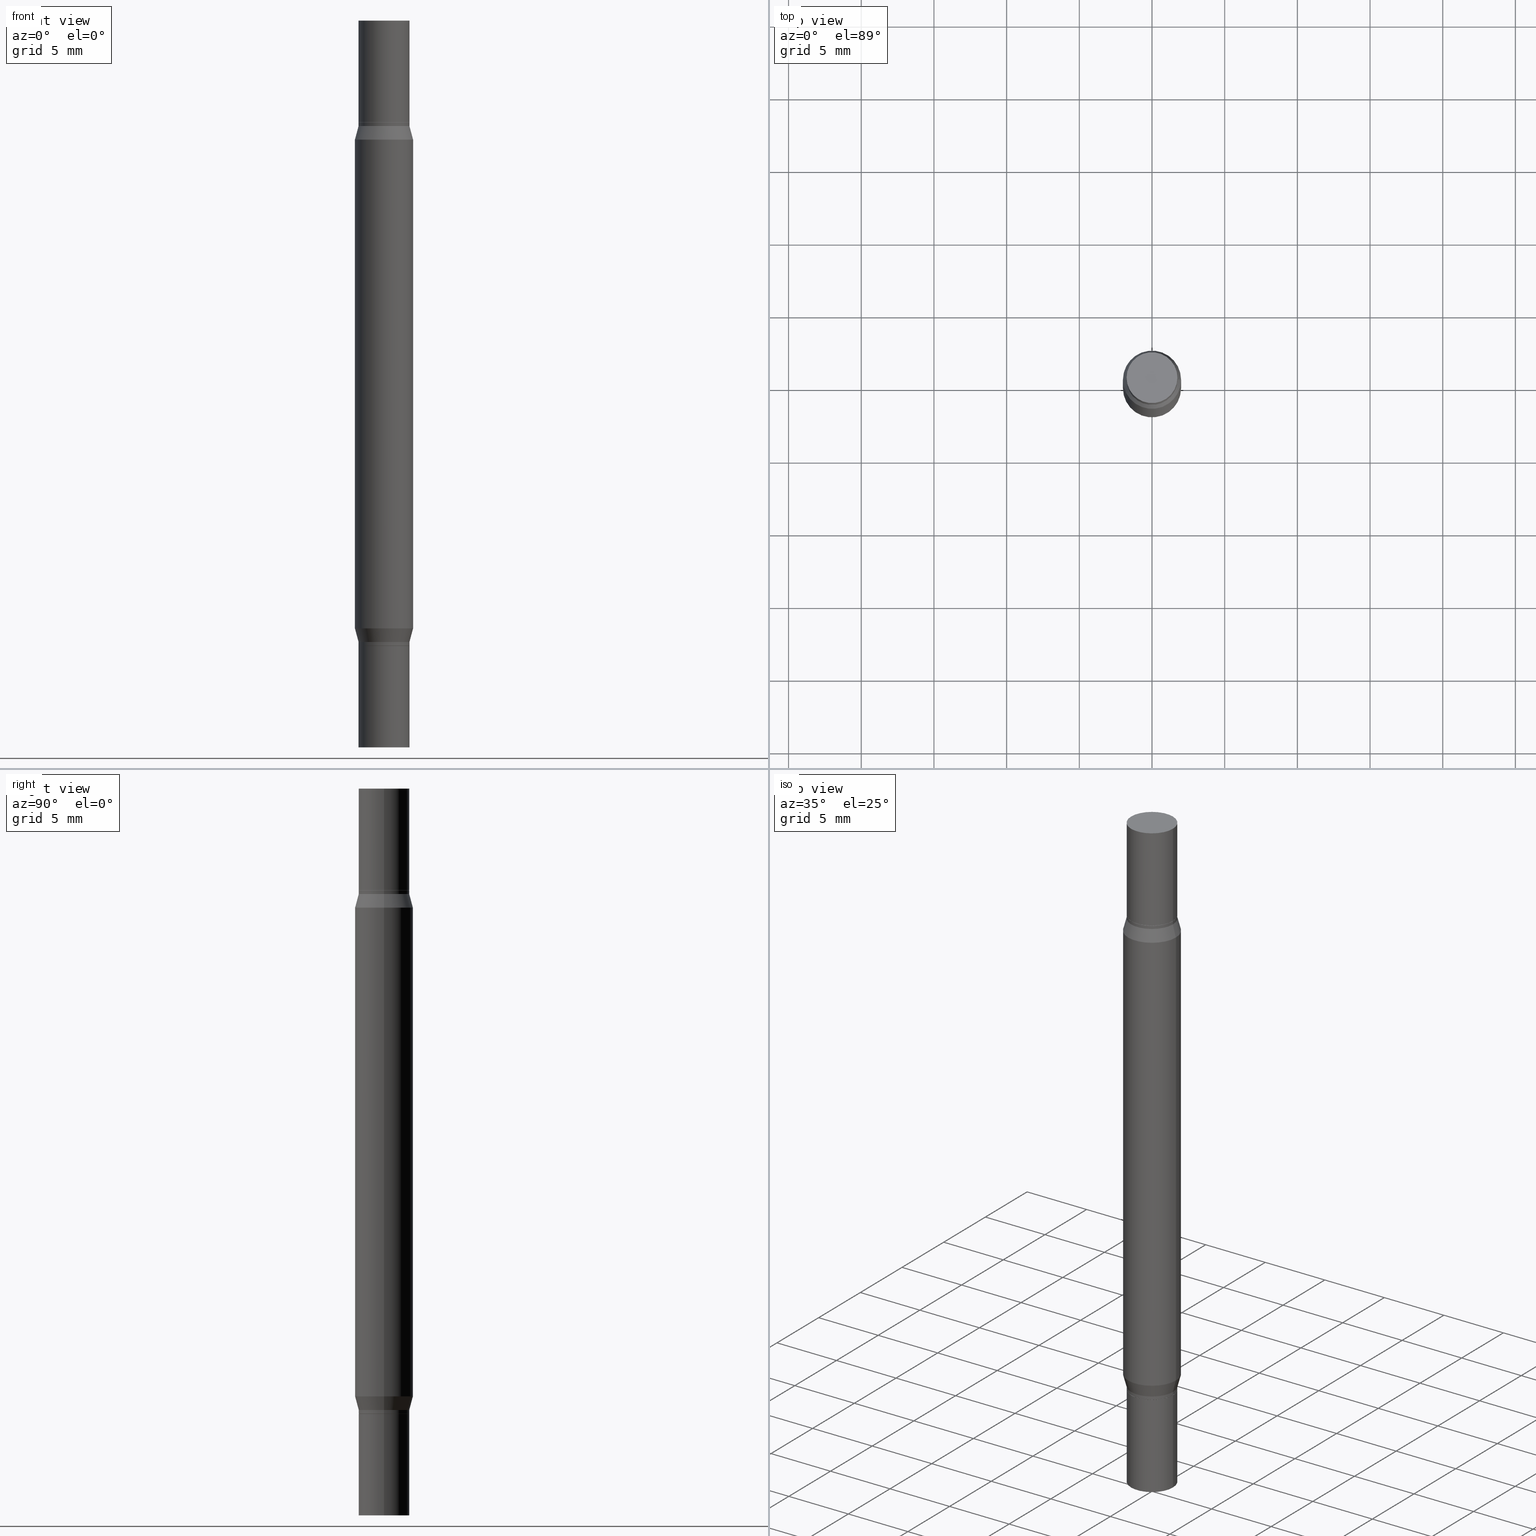
[diagram: canonical four-view strip — front | top / right | iso, engineering-drawing reading convention]
A machine part, canonical four-view strip (front | top / right | iso — engineering-drawing reading convention). The complete STEP part file that produces these views, byte-faithful:
ISO-10303-21;
HEADER;
FILE_DESCRIPTION (( 'STEP AP203' ),
    '1' );
FILE_NAME ('41425.STEP',
    '2024-03-04T16:08:30',
    ( '' ),
    ( '' ),
    'SwSTEP 2.0',
    'SolidWorks 2023',
    '' );
FILE_SCHEMA (( 'CONFIG_CONTROL_DESIGN' ));
ENDSEC;

DATA;
#1 = CARTESIAN_POINT ( 'NONE',  ( -0.06890000000000000291, -6.400611360425393480E-15, -1.968499999999999694 ) ) ;
#2 = VECTOR ( 'NONE', #112, 39.37007874015748143 ) ;
#3 = AXIS2_PLACEMENT_3D ( 'NONE', #82, #381, #687 ) ;
#4 = AXIS2_PLACEMENT_3D ( 'NONE', #265, #968, #556 ) ;
#5 = AXIS2_PLACEMENT_3D ( 'NONE', #701, #615, #244 ) ;
#6 = CARTESIAN_POINT ( 'NONE',  ( 4.139934141990817236E-29, -9.620228272121656440E-16, -0.2755999999999999006 ) ) ;
#7 = ADVANCED_FACE ( 'NONE', ( #490 ), #414, .T. ) ;
#8 = EDGE_LOOP ( 'NONE', ( #847, #805 ) ) ;
#9 = EDGE_CURVE ( 'NONE', #121, #81, #356, .T. ) ;
#10 = DIRECTION ( 'NONE',  ( 1.000000000000000000, -6.982962677686265922E-15, 0.000000000000000000 ) ) ;
#11 = CALENDAR_DATE ( 2024, 4, 3 ) ;
#12 = FACE_OUTER_BOUND ( 'NONE', #859, .T. ) ;
#13 = ADVANCED_FACE ( 'NONE', ( #315 ), #172, .T. ) ;
#14 = EDGE_LOOP ( 'NONE', ( #695, #738, #120, #937 ) ) ;
#15 = AXIS2_PLACEMENT_3D ( 'NONE', #901, #300, #751 ) ;
#16 = PERSON_AND_ORGANIZATION_ROLE ( 'creator' ) ;
#17 = CIRCLE ( 'NONE', #400, 0.06840000000000005798 ) ;
#18 = CC_DESIGN_SECURITY_CLASSIFICATION ( #487, ( #441 ) ) ;
#19 = CARTESIAN_POINT ( 'NONE',  ( -0.06840000000000005798, -4.927647641645923315E-16, -0.2755999999999999006 ) ) ;
#20 = DATE_TIME_ROLE ( 'classification_date' ) ;
#21 = CARTESIAN_POINT ( 'NONE',  ( 4.115479453928965691E-29, -5.875813945139128637E-15, -1.682899999999999618 ) ) ;
#22 = ORIENTED_EDGE ( 'NONE', *, *, #104, .F. ) ;
#23 = CARTESIAN_POINT ( 'NONE',  ( 4.139934141990817236E-29, -5.910728758527560286E-15, -1.692899999999999849 ) ) ;
#24 = FACE_OUTER_BOUND ( 'NONE', #781, .T. ) ;
#25 = PERSON_AND_ORGANIZATION_ROLE ( 'creator' ) ;
#26 = ORIENTED_EDGE ( 'NONE', *, *, #185, .F. ) ;
#27 = DIRECTION ( 'NONE',  ( 1.000000000000000000, -6.982962677686265922E-15, 0.000000000000000000 ) ) ;
#28 = CARTESIAN_POINT ( 'NONE',  ( -0.06890000000000000291, -5.242525661153185867E-16, -0.2856000000000000760 ) ) ;
#29 = CARTESIAN_POINT ( 'NONE',  ( 4.139934141990817236E-29, -5.910728758527560286E-15, -1.692899999999999849 ) ) ;
#30 = EDGE_LOOP ( 'NONE', ( #263, #609 ) ) ;
#31 = CARTESIAN_POINT ( 'NONE',  ( 0.06890000000000007230, -7.354425800964435942E-15, -1.968499999999999694 ) ) ;
#32 = ORIENTED_EDGE ( 'NONE', *, *, #420, .F. ) ;
#33 = AXIS2_PLACEMENT_3D ( 'NONE', #140, #979, #68 ) ;
#34 = EDGE_CURVE ( 'NONE', #305, #640, #916, .T. ) ;
#35 = CARTESIAN_POINT ( 'NONE',  ( -0.06890000000000007230, -8.163773080062677072E-18, 2.731847993664279982E-16 ) ) ;
#36 = AXIS2_PLACEMENT_3D ( 'NONE', #474, #722, #271 ) ;
#37 = CARTESIAN_POINT ( 'NONE',  ( -0.06890000000000000291, 4.895639449387090487E-16, -3.389146277185630017E-30 ) ) ;
#38 = DIRECTION ( 'NONE',  ( 1.000000000000000000, -6.982962677686267499E-15, 0.000000000000000000 ) ) ;
#39 = DIRECTION ( 'NONE',  ( -0.7071067811865656694, 7.493145998870420424E-15, 0.7071067811865294761 ) ) ;
#40 = ORIENTED_EDGE ( 'NONE', *, *, #353, .F. ) ;
#41 = DIRECTION ( 'NONE',  ( 2.438088387897959208E-29, 3.491805094961123683E-15, 1.000000000000000000 ) ) ;
#42 = ORIENTED_EDGE ( 'NONE', *, *, #379, .T. ) ;
#43 = ADVANCED_FACE ( 'NONE', ( #528 ), #761, .T. ) ;
#44 = DIRECTION ( 'NONE',  ( 1.000000000000000000, -6.982962677686261977E-15, 0.000000000000000000 ) ) ;
#45 = ORIENTED_EDGE ( 'NONE', *, *, #663, .T. ) ;
#46 = CARTESIAN_POINT ( 'NONE',  ( 4.139934141990817236E-29, -5.910728758527560286E-15, -1.692899999999999849 ) ) ;
#47 = CARTESIAN_POINT ( 'NONE',  ( 0.06840000000000005798, -1.439657474365906573E-15, -0.2755999999999999006 ) ) ;
#48 = FACE_OUTER_BOUND ( 'NONE', #961, .T. ) ;
#49 = ORIENTED_EDGE ( 'NONE', *, *, #382, .F. ) ;
#50 = EDGE_CURVE ( 'NONE', #647, #98, #605, .T. ) ;
#51 = EDGE_LOOP ( 'NONE', ( #89, #505, #862, #223 ) ) ;
#52 = DIRECTION ( 'NONE',  ( 1.000000000000000000, -6.982962677686265922E-15, 0.000000000000000000 ) ) ;
#53 = CIRCLE ( 'NONE', #540, 0.06840000000000005798 ) ;
#54 = AXIS2_PLACEMENT_3D ( 'NONE', #577, #972, #431 ) ;
#55 = ADVANCED_FACE ( 'NONE', ( #24 ), #478, .T. ) ;
#56 = LINE ( 'NONE', #492, #436 ) ;
#57 =( CONVERSION_BASED_UNIT ( 'INCH', #288 ) LENGTH_UNIT ( ) NAMED_UNIT ( #114 ) );
#58 = CARTESIAN_POINT ( 'NONE',  ( 4.139934141990817236E-29, -9.620228272121656440E-16, -0.2755999999999999006 ) ) ;
#59 = ORIENTED_EDGE ( 'NONE', *, *, #84, .F. ) ;
#60 = CARTESIAN_POINT ( 'NONE',  ( 0.06890000000000007230, -7.354107144005315446E-15, -1.968500000000000139 ) ) ;
#61 = DIRECTION ( 'NONE',  ( 1.000000000000000000, -6.982962677686265922E-15, 0.000000000000000000 ) ) ;
#62 = CARTESIAN_POINT ( 'NONE',  ( 0.000000000000000000, -6.873299672471851415E-15, -1.968499999999999694 ) ) ;
#63 = CC_DESIGN_PERSON_AND_ORGANIZATION_ASSIGNMENT ( #87, #529, ( #441 ) ) ;
#64 = ORIENTED_EDGE ( 'NONE', *, *, #800, .T. ) ;
#65 = AXIS2_PLACEMENT_3D ( 'NONE', #21, #771, #627 ) ;
#66 = VECTOR ( 'NONE', #944, 39.37007874015748143 ) ;
#67 = LOCAL_TIME ( 11, 8, 30.00000000000000000, #866 ) ;
#68 = DIRECTION ( 'NONE',  ( 1.000000000000000000, -6.982962677686258822E-15, 0.000000000000000000 ) ) ;
#69 = ADVANCED_FACE ( 'NONE', ( #786 ), #242, .T. ) ;
#70 = ORIENTED_EDGE ( 'NONE', *, *, #739, .F. ) ;
#71 = DATE_AND_TIME ( #753, #877 ) ;
#72 = CARTESIAN_POINT ( 'NONE',  ( 0.06890000000000000291, -1.478067006654360951E-15, -0.2856000000000000760 ) ) ;
#73 = AXIS2_PLACEMENT_3D ( 'NONE', #648, #563, #448 ) ;
#74 = CIRCLE ( 'NONE', #202, 0.06890000000000007230 ) ;
#75 = LOCAL_TIME ( 11, 8, 30.00000000000000000, #254 ) ;
#76 = DIRECTION ( 'NONE',  ( -2.445468806185136597E-29, 3.491481338843145583E-15, 1.000000000000000000 ) ) ;
#77 = ORIENTED_EDGE ( 'NONE', *, *, #447, .F. ) ;
#78 = DIRECTION ( 'NONE',  ( -2.445468806185136877E-29, -3.491805094961123683E-15, -1.000000000000000000 ) ) ;
#79 = APPROVAL_STATUS ( 'not_yet_approved' ) ;
#80 = EDGE_CURVE ( 'NONE', #339, #745, #320, .T. ) ;
#81 = VERTEX_POINT ( 'NONE', #408 ) ;
#82 = CARTESIAN_POINT ( 'NONE',  ( 0.000000000000000000, 0.000000000000000000, 0.000000000000000000 ) ) ;
#83 = DATE_AND_TIME ( #626, #189 ) ;
#84 = EDGE_CURVE ( 'NONE', #138, #421, #459, .T. ) ;
#85 = FACE_OUTER_BOUND ( 'NONE', #360, .T. ) ;
#86 = AXIS2_PLACEMENT_3D ( 'NONE', #163, #938, #699 ) ;
#87 = PERSON_AND_ORGANIZATION ( #683, #402 ) ;
#88 = VECTOR ( 'NONE', #219, 39.37007874015748143 ) ;
#89 = ORIENTED_EDGE ( 'NONE', *, *, #159, .F. ) ;
#90 = PLANE ( 'NONE',  #602 ) ;
#91 = DIRECTION ( 'NONE',  ( 1.000000000000000000, -6.982962677686268288E-15, 0.000000000000000000 ) ) ;
#92 = CALENDAR_DATE ( 2024, 4, 3 ) ;
#93 = DIRECTION ( 'NONE',  ( 2.445468806185136597E-29, 3.491805094961124077E-15, 1.000000000000000000 ) ) ;
#94 = EDGE_LOOP ( 'NONE', ( #538, #669, #809, #742 ) ) ;
#95 = CARTESIAN_POINT ( 'NONE',  ( 4.115479453928965691E-29, -9.969408781617772122E-16, -0.2856000000000000760 ) ) ;
#96 = ADVANCED_FACE ( 'NONE', ( #323 ), #285, .T. ) ;
#97 = CARTESIAN_POINT ( 'NONE',  ( 4.811261284926255481E-16, 0.06889999999999911473, -0.2756000000000001782 ) ) ;
#98 = VERTEX_POINT ( 'NONE', #183 ) ;
#99 = DIRECTION ( 'NONE',  ( -2.445468806185136597E-29, -3.491805094961124077E-15, -1.000000000000000000 ) ) ;
#100 = DIRECTION ( 'NONE',  ( -2.438088387897959208E-29, -3.491805094961123683E-15, -1.000000000000000000 ) ) ;
#101 = CARTESIAN_POINT ( 'NONE',  ( 4.115479453928965691E-29, -9.969408781617772122E-16, -0.2856000000000000760 ) ) ;
#102 = ORIENTED_EDGE ( 'NONE', *, *, #104, .T. ) ;
#103 = CARTESIAN_POINT ( 'NONE',  ( -0.06890000000000000291, -5.242525661153185867E-16, -0.2856000000000000760 ) ) ;
#104 = EDGE_CURVE ( 'NONE', #98, #150, #709, .T. ) ;
#105 = CIRCLE ( 'NONE', #398, 0.06890000000000007230 ) ;
#106 = CIRCLE ( 'NONE', #757, 0.06890000000000000291 ) ;
#107 = CIRCLE ( 'NONE', #592, 0.07875000000000000056 ) ;
#108 = DIRECTION ( 'NONE',  ( 2.445468806185136597E-29, 3.491805094961124077E-15, 1.000000000000000000 ) ) ;
#109 = DIRECTION ( 'NONE',  ( 0.7071067811865656694, -7.406779323393341342E-15, -0.7071067811865294761 ) ) ;
#110 = FACE_OUTER_BOUND ( 'NONE', #665, .T. ) ;
#111 = EDGE_LOOP ( 'NONE', ( #197, #406, #823, #179 ) ) ;
#112 = DIRECTION ( 'NONE',  ( -2.445468806185136877E-29, -3.491805094961123683E-15, -1.000000000000000000 ) ) ;
#113 = ORIENTED_EDGE ( 'NONE', *, *, #863, .T. ) ;
#114 = DIMENSIONAL_EXPONENTS ( 1.000000000000000000, 0.000000000000000000, 0.000000000000000000, 0.000000000000000000, 0.000000000000000000, 0.000000000000000000, 0.000000000000000000 ) ;
#115 = FACE_OUTER_BOUND ( 'NONE', #268, .T. ) ;
#116 = EDGE_CURVE ( 'NONE', #138, #728, #142, .T. ) ;
#117 = CARTESIAN_POINT ( 'NONE',  ( 4.139934141990817236E-29, -9.620228272121656440E-16, -0.2755999999999999006 ) ) ;
#118 = CARTESIAN_POINT ( 'NONE',  ( 4.025582307673839975E-29, -5.747464645499252384E-15, -1.646139299545446466 ) ) ;
#119 = CARTESIAN_POINT ( 'NONE',  ( 4.139934141990817236E-29, -9.620228272121656440E-16, -0.2755999999999999006 ) ) ;
#120 = ORIENTED_EDGE ( 'NONE', *, *, #177, .F. ) ;
#121 = VERTEX_POINT ( 'NONE', #389 ) ;
#122 = CYLINDRICAL_SURFACE ( 'NONE', #734, 0.06890000000000007230 ) ;
#123 = ORIENTED_EDGE ( 'NONE', *, *, #928, .T. ) ;
#124 = ORIENTED_EDGE ( 'NONE', *, *, #379, .F. ) ;
#125 = VECTOR ( 'NONE', #547, 39.37007874015748143 ) ;
#126 = VECTOR ( 'NONE', #399, 39.37007874015748143 ) ;
#127 = CIRCLE ( 'NONE', #164, 0.07875000000000000056 ) ;
#128 = FACE_OUTER_BOUND ( 'NONE', #546, .T. ) ;
#129 = DIRECTION ( 'NONE',  ( 1.000000000000000000, -6.982962677686258822E-15, 0.000000000000000000 ) ) ;
#130 = AXIS2_PLACEMENT_3D ( 'NONE', #801, #410, #977 ) ;
#131 = ORIENTED_EDGE ( 'NONE', *, *, #230, .F. ) ;
#132 = DIRECTION ( 'NONE',  ( -2.445468806185136597E-29, 3.491481338843145583E-15, 1.000000000000000000 ) ) ;
#133 = DIRECTION ( 'NONE',  ( 2.445468806185136597E-29, 3.491805094961124077E-15, 1.000000000000000000 ) ) ;
#134 = DIRECTION ( 'NONE',  ( -2.445468806185136597E-29, -3.491805094961124077E-15, -1.000000000000000000 ) ) ;
#135 = ADVANCED_FACE ( 'NONE', ( #85 ), #641, .T. ) ;
#136 = DIRECTION ( 'NONE',  ( -2.445468806185136597E-29, 3.491481338843145583E-15, 1.000000000000000000 ) ) ;
#137 = DIRECTION ( 'NONE',  ( 1.000000000000000000, 0.000000000000000000, 0.000000000000000000 ) ) ;
#138 = VERTEX_POINT ( 'NONE', #848 ) ;
#139 = EDGE_CURVE ( 'NONE', #421, #305, #511, .T. ) ;
#140 = CARTESIAN_POINT ( 'NONE',  ( 4.813905344975441835E-29, -6.872981015512731707E-15, -1.968500000000000139 ) ) ;
#141 = ORIENTED_EDGE ( 'NONE', *, *, #698, .T. ) ;
#142 = CIRCLE ( 'NONE', #383, 0.06840000000000005798 ) ;
#143 = VECTOR ( 'NONE', #553, 39.37007874015748143 ) ;
#144 = ORIENTED_EDGE ( 'NONE', *, *, #213, .T. ) ;
#145 = DIRECTION ( 'NONE',  ( 2.445468806185136597E-29, 3.491805094961124077E-15, 1.000000000000000000 ) ) ;
#146 = CARTESIAN_POINT ( 'NONE',  ( 0.06840000000000005798, -1.439657474365906573E-15, -0.2755999999999999006 ) ) ;
#147 = EDGE_CURVE ( 'NONE', #720, #162, #127, .T. ) ;
#148 = CARTESIAN_POINT ( 'NONE',  ( 0.06840000000000005798, -1.439657474365906573E-15, -0.2755999999999999006 ) ) ;
#149 = CARTESIAN_POINT ( 'NONE',  ( 0.000000000000000000, -6.873299672471851415E-15, -1.968499999999999694 ) ) ;
#150 = VERTEX_POINT ( 'NONE', #541 ) ;
#151 = DIRECTION ( 'NONE',  ( 1.000000000000000000, -6.982962677686265922E-15, 0.000000000000000000 ) ) ;
#152 = AXIS2_PLACEMENT_3D ( 'NONE', #178, #717, #953 ) ;
#153 = ORIENTED_EDGE ( 'NONE', *, *, #170, .F. ) ;
#154 = VECTOR ( 'NONE', #362, 39.37007874015748143 ) ;
#155 = AXIS2_PLACEMENT_3D ( 'NONE', #935, #100, #391 ) ;
#156 = ADVANCED_FACE ( 'NONE', ( #171 ), #778, .F. ) ;
#157 = CARTESIAN_POINT ( 'NONE',  ( 0.06890000000000000291, -7.354425800964435942E-15, -1.968499999999999694 ) ) ;
#158 = PERSON_AND_ORGANIZATION ( #683, #402 ) ;
#159 = EDGE_CURVE ( 'NONE', #593, #479, #705, .T. ) ;
#160 = DATE_AND_TIME ( #92, #75 ) ;
#161 = FACE_OUTER_BOUND ( 'NONE', #94, .T. ) ;
#162 = VERTEX_POINT ( 'NONE', #946 ) ;
#163 = CARTESIAN_POINT ( 'NONE',  ( 4.138711407587725556E-29, -9.637687297596452363E-16, -0.2760999999999998455 ) ) ;
#164 = AXIS2_PLACEMENT_3D ( 'NONE', #466, #870, #91 ) ;
#165 = AXIS2_PLACEMENT_3D ( 'NONE', #681, #617, #455 ) ;
#166 = AXIS2_PLACEMENT_3D ( 'NONE', #29, #635, #195 ) ;
#167 = VERTEX_POINT ( 'NONE', #252 ) ;
#168 = LINE ( 'NONE', #28, #756 ) ;
#169 = PLANE ( 'NONE',  #301 ) ;
#170 = EDGE_CURVE ( 'NONE', #210, #720, #864, .T. ) ;
#171 = FACE_OUTER_BOUND ( 'NONE', #303, .T. ) ;
#172 = CYLINDRICAL_SURFACE ( 'NONE', #689, 0.06890000000000000291 ) ;
#173 = ORIENTED_EDGE ( 'NONE', *, *, #213, .F. ) ;
#174 = CARTESIAN_POINT ( 'NONE',  ( 0.06840000000000005798, -6.388363405681301806E-15, -1.692899999999999849 ) ) ;
#175 = DIRECTION ( 'NONE',  ( -2.445468806185136597E-29, 3.491481338843145583E-15, 1.000000000000000000 ) ) ;
#176 = ORIENTED_EDGE ( 'NONE', *, *, #147, .F. ) ;
#177 = EDGE_CURVE ( 'NONE', #199, #309, #829, .T. ) ;
#178 = CARTESIAN_POINT ( 'NONE',  ( 0.000000000000000000, -6.873299672471851415E-15, -1.968499999999999694 ) ) ;
#179 = ORIENTED_EDGE ( 'NONE', *, *, #34, .F. ) ;
#180 = CARTESIAN_POINT ( 'NONE',  ( 4.115479453928965691E-29, -9.969408781617772122E-16, -0.2856000000000000760 ) ) ;
#181 = CARTESIAN_POINT ( 'NONE',  ( 0.000000000000000000, -6.873299672471851415E-15, -1.968499999999999694 ) ) ;
#182 = ORIENTED_EDGE ( 'NONE', *, *, #760, .F. ) ;
#183 = CARTESIAN_POINT ( 'NONE',  ( -0.06890000000000007230, -8.163773080062737161E-18, -0.2755999999999999006 ) ) ;
#184 = VERTEX_POINT ( 'NONE', #794 ) ;
#185 = EDGE_CURVE ( 'NONE', #162, #720, #974, .T. ) ;
#186 = AXIS2_PLACEMENT_3D ( 'NONE', #613, #470, #483 ) ;
#187 = CYLINDRICAL_SURFACE ( 'NONE', #73, 0.07875000000000000056 ) ;
#188 = AXIS2_PLACEMENT_3D ( 'NONE', #918, #369, #10 ) ;
#189 = LOCAL_TIME ( 11, 8, 30.00000000000000000, #688 ) ;
#190 = CARTESIAN_POINT ( 'NONE',  ( -0.06890000000000007230, -8.163773080062737161E-18, -0.2755999999999999006 ) ) ;
#191 = DIRECTION ( 'NONE',  ( 1.000000000000000000, -6.982962677686268288E-15, 0.000000000000000000 ) ) ;
#192 = ORIENTED_EDGE ( 'NONE', *, *, #744, .T. ) ;
#193 = ORIENTED_EDGE ( 'NONE', *, *, #428, .T. ) ;
#194 = CARTESIAN_POINT ( 'NONE',  ( 4.115479453928965691E-29, -9.969408781617772122E-16, -0.2856000000000000760 ) ) ;
#195 = DIRECTION ( 'NONE',  ( 1.000000000000000000, -6.982962677686258822E-15, 0.000000000000000000 ) ) ;
#196 = CARTESIAN_POINT ( 'NONE',  ( 0.06890000000000000291, -6.356940073631712375E-15, -1.682899999999999618 ) ) ;
#197 = ORIENTED_EDGE ( 'NONE', *, *, #139, .F. ) ;
#198 = CARTESIAN_POINT ( 'NONE',  ( 0.06840000000000005798, -1.439657474365906573E-15, -0.2755999999999999006 ) ) ;
#199 = VERTEX_POINT ( 'NONE', #196 ) ;
#200 = CARTESIAN_POINT ( 'NONE',  ( 0.06890000000000007230, -6.391854887020144024E-15, -1.692899999999999849 ) ) ;
#201 = CARTESIAN_POINT ( 'NONE',  ( 0.000000000000000000, -6.873299672471851415E-15, -1.968499999999999694 ) ) ;
#202 = AXIS2_PLACEMENT_3D ( 'NONE', #407, #697, #777 ) ;
#203 = APPLICATION_PROTOCOL_DEFINITION ( 'international standard', 'config_control_design', 1994, #644 ) ;
#204 = DIRECTION ( 'NONE',  ( 1.000000000000000000, -6.982962677686265922E-15, 0.000000000000000000 ) ) ;
#205 = CIRCLE ( 'NONE', #166, 0.06890000000000007230 ) ;
#206 = ADVANCED_FACE ( 'NONE', ( #419 ), #229, .T. ) ;
#207 = DIRECTION ( 'NONE',  ( -2.438088387897960049E-29, 3.491481338843145188E-15, 1.000000000000000000 ) ) ;
#208 = APPROVAL_STATUS ( 'not_yet_approved' ) ;
#209 = ADVANCED_FACE ( 'NONE', ( #110 ), #636, .F. ) ;
#210 = VERTEX_POINT ( 'NONE', #283 ) ;
#211 = CARTESIAN_POINT ( 'NONE',  ( 0.06890000000000007230, -7.354425800964435942E-15, -1.968499999999999694 ) ) ;
#212 = ORIENTED_EDGE ( 'NONE', *, *, #364, .T. ) ;
#213 = EDGE_CURVE ( 'NONE', #150, #98, #240, .T. ) ;
#214 = DIRECTION ( 'NONE',  ( -2.445468806185136597E-29, 3.491481338843145583E-15, 1.000000000000000000 ) ) ;
#215 = AXIS2_PLACEMENT_3D ( 'NONE', #893, #289, #204 ) ;
#216 = AXIS2_PLACEMENT_3D ( 'NONE', #656, #498, #61 ) ;
#217 = AXIS2_PLACEMENT_3D ( 'NONE', #118, #411, #221 ) ;
#218 = CC_DESIGN_DATE_AND_TIME_ASSIGNMENT ( #780, #20, ( #487 ) ) ;
#219 = DIRECTION ( 'NONE',  ( -2.445468806185136877E-29, 3.491481338843145188E-15, 1.000000000000000000 ) ) ;
#220 = ORIENTED_EDGE ( 'NONE', *, *, #637, .F. ) ;
#221 = DIRECTION ( 'NONE',  ( 1.000000000000000000, -6.982962677686261977E-15, 0.000000000000000000 ) ) ;
#222 = DIRECTION ( 'NONE',  ( 2.445468806185136597E-29, 3.491805094961124077E-15, 1.000000000000000000 ) ) ;
#223 = ORIENTED_EDGE ( 'NONE', *, *, #486, .T. ) ;
#224 =( NAMED_UNIT ( * ) PLANE_ANGLE_UNIT ( ) SI_UNIT ( $, .RADIAN. ) );
#225 = PRODUCT ( '41425', '41425', '', ( #812 ) ) ;
#226 = LINE ( 'NONE', #523, #838 ) ;
#227 = CARTESIAN_POINT ( 'NONE',  ( 2.406952672487720357E-29, -3.436490507756365459E-15, -0.9842499999999998472 ) ) ;
#228 = CLOSED_SHELL ( 'NONE', ( #235, #933, #7, #767 ) ) ;
#229 = CONICAL_SURFACE ( 'NONE', #619, 0.06840000000000005798, 0.7853981633974739252 ) ;
#230 = EDGE_CURVE ( 'NONE', #952, #834, #105, .T. ) ;
#231 = CC_DESIGN_APPROVAL ( #724, ( #441 ) ) ;
#232 = SHAPE_DEFINITION_REPRESENTATION ( #919, #310 ) ;
#233 = CALENDAR_DATE ( 2024, 4, 3 ) ;
#234 = DIRECTION ( 'NONE',  ( 1.000000000000000000, -6.982962677686265922E-15, 0.000000000000000000 ) ) ;
#235 = ADVANCED_FACE ( 'NONE', ( #803 ), #412, .T. ) ;
#236 = EDGE_LOOP ( 'NONE', ( #775, #337, #401, #343 ) ) ;
#237 = DIRECTION ( 'NONE',  ( 2.445468806185136597E-29, 3.491805094961124077E-15, 1.000000000000000000 ) ) ;
#238 = CARTESIAN_POINT ( 'NONE',  ( 4.115479453928965691E-29, -9.969408781617772122E-16, -0.2856000000000000760 ) ) ;
#239 = VERTEX_POINT ( 'NONE', #723 ) ;
#240 = CIRCLE ( 'NONE', #4, 0.06890000000000007230 ) ;
#241 = DIRECTION ( 'NONE',  ( -2.438088387897960049E-29, 3.491481338843145188E-15, 1.000000000000000000 ) ) ;
#242 = CYLINDRICAL_SURFACE ( 'NONE', #510, 0.06890000000000000291 ) ;
#243 = CIRCLE ( 'NONE', #464, 0.06889999999999998903 ) ;
#244 = DIRECTION ( 'NONE',  ( -1.000000000000000000, 6.982962677686265922E-15, -4.876176775795935793E-29 ) ) ;
#245 = AXIS2_PLACEMENT_3D ( 'NONE', #819, #576, #824 ) ;
#246 = CARTESIAN_POINT ( 'NONE',  ( 4.138711407587725556E-29, -9.637687297596452363E-16, -0.2760999999999998455 ) ) ;
#247 = AXIS2_PLACEMENT_3D ( 'NONE', #341, #873, #802 ) ;
#248 = FACE_OUTER_BOUND ( 'NONE', #291, .T. ) ;
#249 = DIRECTION ( 'NONE',  ( -1.000000000000000000, 6.982962677686265922E-15, -2.260776888683160832E-33 ) ) ;
#250 = EDGE_LOOP ( 'NONE', ( #374, #643, #192, #497 ) ) ;
#251 = CARTESIAN_POINT ( 'NONE',  ( 0.06890000000000007230, -1.443148955704749777E-15, -0.2755999999999999006 ) ) ;
#252 = CARTESIAN_POINT ( 'NONE',  ( -0.07875000000000000056, -1.740632076205336930E-15, -0.9842499999999998472 ) ) ;
#253 = ORIENTED_EDGE ( 'NONE', *, *, #752, .T. ) ;
#254 = COORDINATED_UNIVERSAL_TIME_OFFSET ( 5, 0, .BEHIND. ) ;
#255 = APPLICATION_CONTEXT ( 'configuration controlled 3d designs of mechanical parts and assemblies' ) ;
#256 = DIRECTION ( 'NONE',  ( -2.445468806185136877E-29, 3.491481338843145188E-15, 1.000000000000000000 ) ) ;
#257 = CYLINDRICAL_SURFACE ( 'NONE', #851, 0.06890000000000000291 ) ;
#258 = CARTESIAN_POINT ( 'NONE',  ( -0.06840000000000005798, -4.919225909388897670E-16, -0.2755999999999999006 ) ) ;
#259 = CARTESIAN_POINT ( 'NONE',  ( 4.139934141990817236E-29, -5.910728758527560286E-15, -1.692899999999999849 ) ) ;
#260 = ORIENTED_EDGE ( 'NONE', *, *, #552, .T. ) ;
#261 = ADVANCED_FACE ( 'NONE', ( #48 ), #658, .T. ) ;
#262 = CARTESIAN_POINT ( 'NONE',  ( 4.139934141990817236E-29, -9.620228272121656440E-16, -0.2755999999999999006 ) ) ;
#263 = ORIENTED_EDGE ( 'NONE', *, *, #708, .T. ) ;
#264 = DIRECTION ( 'NONE',  ( -2.445468806185136597E-29, -3.491805094961124077E-15, -1.000000000000000000 ) ) ;
#265 = CARTESIAN_POINT ( 'NONE',  ( 4.139934141990817236E-29, -9.620228272121656440E-16, -0.2755999999999999006 ) ) ;
#266 = EDGE_LOOP ( 'NONE', ( #390, #868, #461, #874 ) ) ;
#267 = APPROVAL ( #79, 'UNSPECIFIED' ) ;
#268 = EDGE_LOOP ( 'NONE', ( #141, #885, #750, #957 ) ) ;
#269 = AXIS2_PLACEMENT_3D ( 'NONE', #201, #813, #129 ) ;
#270 = AXIS2_PLACEMENT_3D ( 'NONE', #227, #911, #662 ) ;
#271 = DIRECTION ( 'NONE',  ( 1.000000000000000000, -6.982962677686267499E-15, 0.000000000000000000 ) ) ;
#272 = ORIENTED_EDGE ( 'NONE', *, *, #970, .T. ) ;
#273 = DIRECTION ( 'NONE',  ( 1.000000000000000000, -6.982962677686265922E-15, 0.000000000000000000 ) ) ;
#274 = DIRECTION ( 'NONE',  ( 1.000000000000000000, -6.982962677686265922E-15, 4.876176775795935793E-29 ) ) ;
#275 = EDGE_LOOP ( 'NONE', ( #176, #260, #733, #622 ) ) ;
#276 =( NAMED_UNIT ( * ) SI_UNIT ( $, .STERADIAN. ) SOLID_ANGLE_UNIT ( ) );
#277 = DIRECTION ( 'NONE',  ( -2.445468806185136597E-29, 3.491481338843145583E-15, 1.000000000000000000 ) ) ;
#278 = ORIENTED_EDGE ( 'NONE', *, *, #377, .F. ) ;
#279 = DIRECTION ( 'NONE',  ( 0.000000000000000000, 1.000000000000000000, -3.491643216902134435E-15 ) ) ;
#280 = ORIENTED_EDGE ( 'NONE', *, *, #139, .T. ) ;
#281 = EDGE_CURVE ( 'NONE', #309, #199, #313, .T. ) ;
#282 = FACE_OUTER_BOUND ( 'NONE', #457, .T. ) ;
#283 = CARTESIAN_POINT ( 'NONE',  ( -0.06890000000000000291, -5.076664919142526974E-16, -0.2856000000000000760 ) ) ;
#284 = EDGE_LOOP ( 'NONE', ( #612, #931, #102, #704 ) ) ;
#285 = CONICAL_SURFACE ( 'NONE', #539, 0.06840000000000005798, 0.7853981633974739252 ) ;
#286 = CIRCLE ( 'NONE', #690, 0.06889999999999998903 ) ;
#287 = CONICAL_SURFACE ( 'NONE', #188, 0.06890000000000000291, 0.2617993877991502960 ) ;
#288 = LENGTH_MEASURE_WITH_UNIT ( LENGTH_MEASURE( 0.02539999999999999897 ), #571 );
#289 = DIRECTION ( 'NONE',  ( -2.445468806185136597E-29, 3.491481338843145583E-15, 1.000000000000000000 ) ) ;
#290 = ADVANCED_FACE ( 'NONE', ( #348 ), #849, .T. ) ;
#291 = EDGE_LOOP ( 'NONE', ( #394, #808, #900, #473 ) ) ;
#292 = DIRECTION ( 'NONE',  ( -2.445468806185136597E-29, -3.491805094961124077E-15, -1.000000000000000000 ) ) ;
#293 = CARTESIAN_POINT ( 'NONE',  ( 4.025582307673839975E-29, -5.747464645499252384E-15, -1.646139299545446466 ) ) ;
#294 = EDGE_LOOP ( 'NONE', ( #804, #726, #131, #70 ) ) ;
#295 = EDGE_CURVE ( 'NONE', #184, #557, #601, .T. ) ;
#296 = CARTESIAN_POINT ( 'NONE',  ( 4.138711407587725556E-29, -9.637687297596452363E-16, -0.2760999999999998455 ) ) ;
#297 = DIRECTION ( 'NONE',  ( -2.445468806185136597E-29, -3.491805094961124077E-15, -1.000000000000000000 ) ) ;
#298 = VERTEX_POINT ( 'NONE', #531 ) ;
#299 = PRODUCT_DEFINITION ( 'UNKNOWN', '', #441, #671 ) ;
#300 = DIRECTION ( 'NONE',  ( 2.445468806185136597E-29, 3.491805094961124077E-15, 1.000000000000000000 ) ) ;
#301 = AXIS2_PLACEMENT_3D ( 'NONE', #611, #336, #249 ) ;
#302 = AXIS2_PLACEMENT_3D ( 'NONE', #621, #418, #44 ) ;
#303 = EDGE_LOOP ( 'NONE', ( #173, #22 ) ) ;
#304 = CARTESIAN_POINT ( 'NONE',  ( -0.06840000000000005798, -4.927647641645923315E-16, -0.2755999999999999006 ) ) ;
#305 = VERTEX_POINT ( 'NONE', #846 ) ;
#306 = CARTESIAN_POINT ( 'NONE',  ( 0.000000000000000000, 0.000000000000000000, 0.000000000000000000 ) ) ;
#307 = CARTESIAN_POINT ( 'NONE',  ( 4.139934141990817236E-29, -9.620228272121656440E-16, -0.2755999999999999006 ) ) ;
#308 = ADVANCED_FACE ( 'NONE', ( #161 ), #923, .T. ) ;
#309 = VERTEX_POINT ( 'NONE', #710 ) ;
#310 = ADVANCED_BREP_SHAPE_REPRESENTATION ( '41425', ( #582, #908, #564, #568, #561, #716 ), #748 ) ;
#311 = EDGE_CURVE ( 'NONE', #657, #891, #872, .T. ) ;
#312 = ORIENTED_EDGE ( 'NONE', *, *, #9, .F. ) ;
#313 = CIRCLE ( 'NONE', #65, 0.06890000000000000291 ) ;
#314 = CC_DESIGN_APPROVAL ( #267, ( #487 ) ) ;
#315 = FACE_OUTER_BOUND ( 'NONE', #236, .T. ) ;
#316 = DIRECTION ( 'NONE',  ( -2.445468806185136597E-29, -3.491805094961124077E-15, -1.000000000000000000 ) ) ;
#317 = CARTESIAN_POINT ( 'NONE',  ( 0.06840000000000005798, -6.388363405681301806E-15, -1.692899999999999849 ) ) ;
#318 = EDGE_CURVE ( 'NONE', #81, #167, #56, .T. ) ;
#319 = CARTESIAN_POINT ( 'NONE',  ( 4.139934141990817236E-29, -9.620228272121656440E-16, -0.2755999999999999006 ) ) ;
#320 = LINE ( 'NONE', #31, #2 ) ;
#321 = CARTESIAN_POINT ( 'NONE',  ( 4.115479453928965691E-29, -5.875813945139128637E-15, -1.682899999999999618 ) ) ;
#322 = ORIENTED_EDGE ( 'NONE', *, *, #335, .F. ) ;
#323 = FACE_OUTER_BOUND ( 'NONE', #250, .T. ) ;
#324 = PERSON_AND_ORGANIZATION ( #683, #402 ) ;
#325 = DIRECTION ( 'NONE',  ( -2.445468806185136877E-29, 3.491481338843145188E-15, 1.000000000000000000 ) ) ;
#326 = CYLINDRICAL_SURFACE ( 'NONE', #302, 0.07875000000000000056 ) ;
#327 = ORIENTED_EDGE ( 'NONE', *, *, #752, .F. ) ;
#328 = AXIS2_PLACEMENT_3D ( 'NONE', #567, #929, #27 ) ;
#329 = CARTESIAN_POINT ( 'NONE',  ( -0.06890000000000007230, -6.400611360425392691E-15, -1.968499999999999694 ) ) ;
#330 = EDGE_LOOP ( 'NONE', ( #566, #49 ) ) ;
#331 = CIRCLE ( 'NONE', #580, 0.06840000000000005798 ) ;
#332 = FACE_OUTER_BOUND ( 'NONE', #275, .T. ) ;
#333 = ORIENTED_EDGE ( 'NONE', *, *, #50, .F. ) ;
#334 = CARTESIAN_POINT ( 'NONE',  ( -0.06890000000000007230, 4.895639449387095418E-16, -3.389146277185633520E-30 ) ) ;
#335 = EDGE_CURVE ( 'NONE', #560, #834, #782, .T. ) ;
#336 = DIRECTION ( 'NONE',  ( 2.438088387897959208E-29, 3.491805094961123683E-15, 1.000000000000000000 ) ) ;
#337 = ORIENTED_EDGE ( 'NONE', *, *, #506, .T. ) ;
#338 = DIRECTION ( 'NONE',  ( 1.000000000000000000, -6.982962677686267499E-15, 0.000000000000000000 ) ) ;
#339 = VERTEX_POINT ( 'NONE', #549 ) ;
#340 = DIRECTION ( 'NONE',  ( 1.000000000000000000, -6.982962677686267499E-15, 0.000000000000000000 ) ) ;
#341 = CARTESIAN_POINT ( 'NONE',  ( 2.406952672487720357E-29, -3.436490507756365459E-15, -0.9842499999999998472 ) ) ;
#342 = EDGE_CURVE ( 'NONE', #640, #210, #463, .T. ) ;
#343 = ORIENTED_EDGE ( 'NONE', *, *, #281, .F. ) ;
#344 = CARTESIAN_POINT ( 'NONE',  ( -0.06890000000000007230, -5.902290942081436849E-15, -1.692899999999999849 ) ) ;
#345 = ORIENTED_EDGE ( 'NONE', *, *, #760, .T. ) ;
#346 = ORIENTED_EDGE ( 'NONE', *, *, #170, .T. ) ;
#347 = AXIS2_PLACEMENT_3D ( 'NONE', #964, #207, #274 ) ;
#348 = FACE_OUTER_BOUND ( 'NONE', #495, .T. ) ;
#349 = LINE ( 'NONE', #496, #358 ) ;
#350 = ORIENTED_EDGE ( 'NONE', *, *, #159, .T. ) ;
#351 = EDGE_CURVE ( 'NONE', #239, #647, #674, .T. ) ;
#352 = DIRECTION ( 'NONE',  ( -2.445468806185136877E-29, -3.491805094961123683E-15, -1.000000000000000000 ) ) ;
#353 = EDGE_CURVE ( 'NONE', #479, #745, #814, .T. ) ;
#354 = CARTESIAN_POINT ( 'NONE',  ( -0.07875000000000000056, -2.896226290431857964E-15, -1.646139299545446466 ) ) ;
#355 = APPLICATION_PROTOCOL_DEFINITION ( 'international standard', 'config_control_design', 1994, #255 ) ;
#356 = CIRCLE ( 'NONE', #959, 0.07875000000000000056 ) ;
#357 = AXIS2_PLACEMENT_3D ( 'NONE', #758, #99, #234 ) ;
#358 = VECTOR ( 'NONE', #575, 39.37007874015748143 ) ;
#359 = ADVANCED_FACE ( 'NONE', ( #332 ), #187, .T. ) ;
#360 = EDGE_LOOP ( 'NONE', ( #153, #618, #345, #434 ) ) ;
#361 = AXIS2_PLACEMENT_3D ( 'NONE', #101, #793, #52 ) ;
#362 = DIRECTION ( 'NONE',  ( -2.445468806185136877E-29, -3.491805094961123683E-15, -1.000000000000000000 ) ) ;
#363 = DIRECTION ( 'NONE',  ( 1.000000000000000000, -6.982962677686267499E-15, 0.000000000000000000 ) ) ;
#364 = EDGE_CURVE ( 'NONE', #239, #150, #922, .T. ) ;
#365 = ORIENTED_EDGE ( 'NONE', *, *, #147, .T. ) ;
#366 = LINE ( 'NONE', #146, #558 ) ;
#367 = ORIENTED_EDGE ( 'NONE', *, *, #428, .F. ) ;
#368 = DIRECTION ( 'NONE',  ( 1.000000000000000000, -6.982962677686265922E-15, 0.000000000000000000 ) ) ;
#369 = DIRECTION ( 'NONE',  ( -2.445468806185136597E-29, 3.491481338843145583E-15, 1.000000000000000000 ) ) ;
#370 = FACE_OUTER_BOUND ( 'NONE', #947, .T. ) ;
#371 = AXIS2_PLACEMENT_3D ( 'NONE', #886, #133, #939 ) ;
#372 = AXIS2_PLACEMENT_3D ( 'NONE', #246, #858, #789 ) ;
#373 = VECTOR ( 'NONE', #888, 39.37007874015748143 ) ;
#374 = ORIENTED_EDGE ( 'NONE', *, *, #887, .F. ) ;
#375 = VECTOR ( 'NONE', #109, 39.37007874015748143 ) ;
#376 = DIRECTION ( 'NONE',  ( 1.000000000000000000, -6.982962677686265922E-15, 4.876176775795934672E-29 ) ) ;
#377 = EDGE_CURVE ( 'NONE', #421, #210, #507, .T. ) ;
#378 = APPROVAL_ROLE ( '' ) ;
#379 = EDGE_CURVE ( 'NONE', #593, #339, #754, .T. ) ;
#380 = VERTEX_POINT ( 'NONE', #833 ) ;
#381 = DIRECTION ( 'NONE',  ( -2.445468806185136597E-29, 3.491481338843145583E-15, 1.000000000000000000 ) ) ;
#382 = EDGE_CURVE ( 'NONE', #560, #965, #450, .T. ) ;
#383 = AXIS2_PLACEMENT_3D ( 'NONE', #262, #770, #338 ) ;
#384 = CIRCLE ( 'NONE', #512, 0.06889999999999998903 ) ;
#385 = DIRECTION ( 'NONE',  ( -2.445468806185136597E-29, -3.491805094961124077E-15, -1.000000000000000000 ) ) ;
#386 = APPROVAL_ROLE ( '' ) ;
#387 = ORIENTED_EDGE ( 'NONE', *, *, #353, .T. ) ;
#388 = CC_DESIGN_PERSON_AND_ORGANIZATION_ASSIGNMENT ( #324, #25, ( #441 ) ) ;
#389 = CARTESIAN_POINT ( 'NONE',  ( 0.07875000000000000056, -1.675210390171119696E-15, -0.3223607004545533949 ) ) ;
#390 = ORIENTED_EDGE ( 'NONE', *, *, #800, .F. ) ;
#391 = DIRECTION ( 'NONE',  ( 1.000000000000000000, -6.982962677686265922E-15, 2.260776888683160832E-33 ) ) ;
#392 = CARTESIAN_POINT ( 'NONE',  ( 0.000000000000000000, 0.000000000000000000, 0.000000000000000000 ) ) ;
#393 = DIRECTION ( 'NONE',  ( -1.000000000000000000, 6.982962677686265922E-15, -2.260776888683160832E-33 ) ) ;
#394 = ORIENTED_EDGE ( 'NONE', *, *, #951, .F. ) ;
#395 = LINE ( 'NONE', #543, #66 ) ;
#396 = CARTESIAN_POINT ( 'NONE',  ( 0.000000000000000000, 0.000000000000000000, 0.000000000000000000 ) ) ;
#397 = ORIENTED_EDGE ( 'NONE', *, *, #515, .F. ) ;
#398 = AXIS2_PLACEMENT_3D ( 'NONE', #807, #277, #889 ) ;
#399 = DIRECTION ( 'NONE',  ( -0.2588190451025216277, -1.597197180879712157E-15, -0.9659258262890679791 ) ) ;
#400 = AXIS2_PLACEMENT_3D ( 'NONE', #692, #108, #340 ) ;
#401 = ORIENTED_EDGE ( 'NONE', *, *, #570, .T. ) ;
#402 = ORGANIZATION ( 'UNSPECIFIED', 'UNSPECIFIED', '' ) ;
#403 = EDGE_CURVE ( 'NONE', #509, #298, #579, .T. ) ;
#404 = ORIENTED_EDGE ( 'NONE', *, *, #966, .F. ) ;
#405 = DIRECTION ( 'NONE',  ( -2.445468806185136597E-29, -3.491805094961124077E-15, -1.000000000000000000 ) ) ;
#406 = ORIENTED_EDGE ( 'NONE', *, *, #377, .T. ) ;
#407 = CARTESIAN_POINT ( 'NONE',  ( 4.813905344975441835E-29, 3.186569591213228268E-19, 2.731847993664263218E-16 ) ) ;
#408 = CARTESIAN_POINT ( 'NONE',  ( -0.07875000000000000056, -5.850378619788179676E-16, -0.3223607004545533949 ) ) ;
#409 = EDGE_LOOP ( 'NONE', ( #765, #865 ) ) ;
#410 = DIRECTION ( 'NONE',  ( 2.445468806185136597E-29, 3.491805094961124077E-15, 1.000000000000000000 ) ) ;
#411 = DIRECTION ( 'NONE',  ( -2.445468806185136597E-29, 3.491481338843145583E-15, 1.000000000000000000 ) ) ;
#412 = CYLINDRICAL_SURFACE ( 'NONE', #269, 0.06890000000000007230 ) ;
#413 = VERTEX_POINT ( 'NONE', #826 ) ;
#414 = CYLINDRICAL_SURFACE ( 'NONE', #729, 0.06890000000000007230 ) ;
#415 = DIRECTION ( 'NONE',  ( 0.000000000000000000, 3.491643216902134435E-15, 1.000000000000000000 ) ) ;
#416 = EDGE_LOOP ( 'NONE', ( #578, #40 ) ) ;
#417 = DIRECTION ( 'NONE',  ( -2.445468806185136597E-29, 3.491481338843145583E-15, 1.000000000000000000 ) ) ;
#418 = DIRECTION ( 'NONE',  ( -2.445468806185136597E-29, -3.491805094961124077E-15, -1.000000000000000000 ) ) ;
#419 = FACE_OUTER_BOUND ( 'NONE', #714, .T. ) ;
#420 = EDGE_CURVE ( 'NONE', #634, #413, #366, .T. ) ;
#421 = VERTEX_POINT ( 'NONE', #587 ) ;
#422 = CARTESIAN_POINT ( 'NONE',  ( 0.06890000000000000291, -1.478067006654360951E-15, -0.2856000000000000760 ) ) ;
#423 = AXIS2_PLACEMENT_3D ( 'NONE', #321, #425, #879 ) ;
#424 = CONICAL_SURFACE ( 'NONE', #525, 0.06840000000000005798, 0.7853981633974739252 ) ;
#425 = DIRECTION ( 'NONE',  ( -2.445468806185136597E-29, 3.491481338843145583E-15, 1.000000000000000000 ) ) ;
#426 = CONICAL_SURFACE ( 'NONE', #361, 0.06890000000000000291, 0.2617993877991502960 ) ;
#427 = DIRECTION ( 'NONE',  ( 2.445468806185136597E-29, 3.491805094961124077E-15, 1.000000000000000000 ) ) ;
#428 = EDGE_CURVE ( 'NONE', #569, #413, #286, .T. ) ;
#429 = DIRECTION ( 'NONE',  ( 1.000000000000000000, -6.982962677686267499E-15, 0.000000000000000000 ) ) ;
#430 = CARTESIAN_POINT ( 'NONE',  ( 0.07875000000000000056, -7.423207983339643972E-15, -1.968499999999999694 ) ) ;
#431 = DIRECTION ( 'NONE',  ( 1.000000000000000000, -6.982962677686261977E-15, 0.000000000000000000 ) ) ;
#432 = CYLINDRICAL_SURFACE ( 'NONE', #925, 0.06890000000000000291 ) ;
#433 = EDGE_CURVE ( 'NONE', #413, #657, #443, .T. ) ;
#434 = ORIENTED_EDGE ( 'NONE', *, *, #185, .T. ) ;
#435 = CLOSED_SHELL ( 'NONE', ( #850, #820, #462, #206, #616, #815, #583, #69, #261, #493 ) ) ;
#436 = VECTOR ( 'NONE', #352, 39.37007874015748143 ) ;
#437 = CC_DESIGN_DATE_AND_TIME_ASSIGNMENT ( #160, #842, ( #299 ) ) ;
#438 = AXIS2_PLACEMENT_3D ( 'NONE', #542, #415, #279 ) ;
#439 = DIRECTION ( 'NONE',  ( 2.445468806185136597E-29, 3.491805094961124077E-15, 1.000000000000000000 ) ) ;
#440 = ORIENTED_EDGE ( 'NONE', *, *, #116, .F. ) ;
#441 = PRODUCT_DEFINITION_FORMATION_WITH_SPECIFIED_SOURCE ( 'ANY', '', #225, .NOT_KNOWN. ) ;
#442 = DIRECTION ( 'NONE',  ( 1.000000000000000000, -6.982962677686268288E-15, 0.000000000000000000 ) ) ;
#443 = LINE ( 'NONE', #670, #816 ) ;
#444 = CARTESIAN_POINT ( 'NONE',  ( 4.025582307673839975E-29, -1.125302079303325561E-15, -0.3223607004545533949 ) ) ;
#445 = PLANE ( 'NONE',  #768 ) ;
#446 = EDGE_LOOP ( 'NONE', ( #59, #404, #113, #638 ) ) ;
#447 = EDGE_CURVE ( 'NONE', #167, #772, #830, .T. ) ;
#448 = DIRECTION ( 'NONE',  ( 1.000000000000000000, -6.982962677686261977E-15, 0.000000000000000000 ) ) ;
#449 = CYLINDRICAL_SURFACE ( 'NONE', #975, 0.06890000000000000291 ) ;
#450 = CIRCLE ( 'NONE', #33, 0.06890000000000007230 ) ;
#451 = VECTOR ( 'NONE', #740, 39.37007874015748143 ) ;
#452 = ORIENTED_EDGE ( 'NONE', *, *, #928, .F. ) ;
#453 = EDGE_CURVE ( 'NONE', #413, #569, #732, .T. ) ;
#454 = DIRECTION ( 'NONE',  ( -2.438088387897959208E-29, -3.491805094961123683E-15, -1.000000000000000000 ) ) ;
#455 = DIRECTION ( 'NONE',  ( 1.000000000000000000, -6.982962677686258822E-15, 0.000000000000000000 ) ) ;
#456 = DIRECTION ( 'NONE',  ( -2.445468806185136877E-29, -3.491805094961123683E-15, -1.000000000000000000 ) ) ;
#457 = EDGE_LOOP ( 'NONE', ( #551, #26, #600, #123 ) ) ;
#458 = ADVANCED_FACE ( 'NONE', ( #115 ), #906, .T. ) ;
#459 = LINE ( 'NONE', #19, #125 ) ;
#460 = CARTESIAN_POINT ( 'NONE',  ( -0.06890000000000007230, -6.400611360425392691E-15, -1.968499999999999694 ) ) ;
#461 = ORIENTED_EDGE ( 'NONE', *, *, #913, .F. ) ;
#462 = ADVANCED_FACE ( 'NONE', ( #667 ), #257, .T. ) ;
#463 = CIRCLE ( 'NONE', #590, 0.06890000000000000291 ) ;
#464 = AXIS2_PLACEMENT_3D ( 'NONE', #649, #136, #897 ) ;
#465 = CIRCLE ( 'NONE', #247, 0.07875000000000000056 ) ;
#466 = CARTESIAN_POINT ( 'NONE',  ( 4.025582307673839975E-29, -1.125302079303325561E-15, -0.3223607004545533949 ) ) ;
#467 = LINE ( 'NONE', #773, #484 ) ;
#468 = PLANE ( 'NONE',  #963 ) ;
#469 = DIRECTION ( 'NONE',  ( 0.7071067811865656694, -2.468850131082446387E-15, 0.7071067811865294761 ) ) ;
#470 = DIRECTION ( 'NONE',  ( 2.445468806185136597E-29, 3.491805094961124077E-15, 1.000000000000000000 ) ) ;
#471 = ORIENTED_EDGE ( 'NONE', *, *, #311, .T. ) ;
#472 = SECURITY_CLASSIFICATION_LEVEL ( 'unclassified' ) ;
#473 = ORIENTED_EDGE ( 'NONE', *, *, #453, .T. ) ;
#474 = CARTESIAN_POINT ( 'NONE',  ( 4.138711407587725556E-29, -9.637687297596452363E-16, -0.2760999999999998455 ) ) ;
#475 = VERTEX_POINT ( 'NONE', #818 ) ;
#476 = LINE ( 'NONE', #686, #143 ) ;
#477 = EDGE_CURVE ( 'NONE', #121, #772, #581, .T. ) ;
#478 = CYLINDRICAL_SURFACE ( 'NONE', #152, 0.06890000000000007230 ) ;
#479 = VERTEX_POINT ( 'NONE', #190 ) ;
#480 = ORIENTED_EDGE ( 'NONE', *, *, #382, .T. ) ;
#481 = DIRECTION ( 'NONE',  ( 2.445468806185136597E-29, 3.491805094961124077E-15, 1.000000000000000000 ) ) ;
#482 = AXIS2_PLACEMENT_3D ( 'NONE', #97, #41, #393 ) ;
#483 = DIRECTION ( 'NONE',  ( 1.000000000000000000, -6.982962677686265922E-15, 0.000000000000000000 ) ) ;
#484 = VECTOR ( 'NONE', #325, 39.37007874015748143 ) ;
#485 = EDGE_LOOP ( 'NONE', ( #327, #664, #64, #220 ) ) ;
#486 = EDGE_CURVE ( 'NONE', #745, #479, #940, .T. ) ;
#487 = SECURITY_CLASSIFICATION ( '', '', #472 ) ;
#488 = FACE_OUTER_BOUND ( 'NONE', #446, .T. ) ;
#489 = ORIENTED_EDGE ( 'NONE', *, *, #447, .T. ) ;
#490 = FACE_OUTER_BOUND ( 'NONE', #51, .T. ) ;
#491 = EDGE_LOOP ( 'NONE', ( #958, #272, #452, #397 ) ) ;
#492 = CARTESIAN_POINT ( 'NONE',  ( -0.07875000000000000056, -6.333035455147343525E-15, -1.968499999999999694 ) ) ;
#493 = ADVANCED_FACE ( 'NONE', ( #370 ), #912, .T. ) ;
#494 = DIRECTION ( 'NONE',  ( 1.000000000000000000, -6.982962677686267499E-15, 0.000000000000000000 ) ) ;
#495 = EDGE_LOOP ( 'NONE', ( #969, #346, #365, #182 ) ) ;
#496 = CARTESIAN_POINT ( 'NONE',  ( 0.06890000000000000291, -1.478067006654360951E-15, -0.2856000000000000760 ) ) ;
#497 = ORIENTED_EDGE ( 'NONE', *, *, #506, .F. ) ;
#498 = DIRECTION ( 'NONE',  ( 2.445468806185136597E-29, 3.491805094961124077E-15, 1.000000000000000000 ) ) ;
#499 = VECTOR ( 'NONE', #666, 39.37007874015748143 ) ;
#500 = CIRCLE ( 'NONE', #165, 0.06890000000000007230 ) ;
#501 = DIRECTION ( 'NONE',  ( 1.000000000000000000, -6.982962677686267499E-15, 0.000000000000000000 ) ) ;
#502 = ORIENTED_EDGE ( 'NONE', *, *, #951, .T. ) ;
#503 = EDGE_CURVE ( 'NONE', #380, #475, #384, .T. ) ;
#504 = APPROVAL_ROLE ( '' ) ;
#505 = ORIENTED_EDGE ( 'NONE', *, *, #663, .F. ) ;
#506 = EDGE_CURVE ( 'NONE', #475, #380, #243, .T. ) ;
#507 = LINE ( 'NONE', #1, #499 ) ;
#508 = EDGE_LOOP ( 'NONE', ( #322, #480, #721, #787 ) ) ;
#509 = VERTEX_POINT ( 'NONE', #354 ) ;
#510 = AXIS2_PLACEMENT_3D ( 'NONE', #798, #856, #554 ) ;
#511 = CIRCLE ( 'NONE', #86, 0.06889999999999998903 ) ;
#512 = AXIS2_PLACEMENT_3D ( 'NONE', #976, #132, #660 ) ;
#513 = DIRECTION ( 'NONE',  ( 0.7071067811865656694, -7.406779323393341342E-15, -0.7071067811865294761 ) ) ;
#514 = CARTESIAN_POINT ( 'NONE',  ( -0.07875000000000000056, -5.850378619788179676E-16, -0.3223607004545533949 ) ) ;
#515 = EDGE_CURVE ( 'NONE', #199, #298, #653, .T. ) ;
#516 = DIRECTION ( 'NONE',  ( -2.445468806185136597E-29, 3.491481338843145583E-15, 1.000000000000000000 ) ) ;
#517 = ORIENTED_EDGE ( 'NONE', *, *, #433, .F. ) ;
#518 = CYLINDRICAL_SURFACE ( 'NONE', #54, 0.07875000000000000056 ) ;
#519 = DIRECTION ( 'NONE',  ( 1.000000000000000000, -6.982962677686267499E-15, 0.000000000000000000 ) ) ;
#520 = LINE ( 'NONE', #317, #559 ) ;
#521 = ADVANCED_FACE ( 'NONE', ( #821 ), #432, .T. ) ;
#522 = CARTESIAN_POINT ( 'NONE',  ( -0.06890000000000000291, -5.386250000200419884E-15, -1.682899999999999618 ) ) ;
#523 = CARTESIAN_POINT ( 'NONE',  ( -0.06890000000000000291, -6.400611360425393480E-15, -1.968499999999999694 ) ) ;
#524 = AXIS2_PLACEMENT_3D ( 'NONE', #533, #385, #693 ) ;
#525 = AXIS2_PLACEMENT_3D ( 'NONE', #117, #134, #429 ) ;
#526 = CC_DESIGN_APPROVAL ( #920, ( #299 ) ) ;
#527 = EDGE_CURVE ( 'NONE', #475, #309, #610, .T. ) ;
#528 = FACE_OUTER_BOUND ( 'NONE', #14, .T. ) ;
#529 = PERSON_AND_ORGANIZATION_ROLE ( 'design_supplier' ) ;
#530 = PRODUCT_RELATED_PRODUCT_CATEGORY ( 'detail', '', ( #225 ) ) ;
#531 = CARTESIAN_POINT ( 'NONE',  ( 0.07875000000000000056, -6.297372956367045729E-15, -1.646139299545446466 ) ) ;
#532 = ORIENTED_EDGE ( 'NONE', *, *, #843, .F. ) ;
#533 = CARTESIAN_POINT ( 'NONE',  ( 4.115479453928965691E-29, -9.969408781617772122E-16, -0.2856000000000000760 ) ) ;
#534 = APPROVAL_DATE_TIME ( #763, #724 ) ;
#535 = VECTOR ( 'NONE', #78, 39.37007874015748143 ) ;
#536 = AXIS2_PLACEMENT_3D ( 'NONE', #238, #631, #950 ) ;
#537 = CARTESIAN_POINT ( 'NONE',  ( 0.07875000000000000056, -2.830804604397638560E-15, -0.9842499999999998472 ) ) ;
#538 = ORIENTED_EDGE ( 'NONE', *, *, #970, .F. ) ;
#539 = AXIS2_PLACEMENT_3D ( 'NONE', #606, #633, #762 ) ;
#540 = AXIS2_PLACEMENT_3D ( 'NONE', #883, #516, #38 ) ;
#541 = CARTESIAN_POINT ( 'NONE',  ( 0.06890000000000007230, -1.443148955704749777E-15, -0.2755999999999999006 ) ) ;
#542 = CARTESIAN_POINT ( 'NONE',  ( 0.000000000000000000, 0.000000000000000000, -0.9842499999999998472 ) ) ;
#543 = CARTESIAN_POINT ( 'NONE',  ( -0.07875000000000000056, -6.333035455147343525E-15, -1.968499999999999694 ) ) ;
#544 = DIRECTION ( 'NONE',  ( 1.000000000000000000, -6.982962677686265922E-15, 2.260776888683160832E-33 ) ) ;
#545 = ADVANCED_FACE ( 'NONE', ( #620 ), #852, .F. ) ;
#546 = EDGE_LOOP ( 'NONE', ( #45, #42 ) ) ;
#547 = DIRECTION ( 'NONE',  ( -0.7071067811865656694, 2.382025595312421833E-15, -0.7071067811865294761 ) ) ;
#548 = ORIENTED_EDGE ( 'NONE', *, *, #433, .T. ) ;
#549 = CARTESIAN_POINT ( 'NONE',  ( 0.06890000000000007230, -4.808074715334629460E-16, 2.731847993664263218E-16 ) ) ;
#550 = FACE_OUTER_BOUND ( 'NONE', #284, .T. ) ;
#551 = ORIENTED_EDGE ( 'NONE', *, *, #552, .F. ) ;
#552 = EDGE_CURVE ( 'NONE', #720, #509, #395, .T. ) ;
#553 = DIRECTION ( 'NONE',  ( -2.445468806185136877E-29, -3.491805094961123683E-15, -1.000000000000000000 ) ) ;
#554 = DIRECTION ( 'NONE',  ( 1.000000000000000000, -6.982962677686265922E-15, 0.000000000000000000 ) ) ;
#555 = CARTESIAN_POINT ( 'NONE',  ( -0.06890000000000000291, -5.076664919142526974E-16, -0.2856000000000000760 ) ) ;
#556 = DIRECTION ( 'NONE',  ( 1.000000000000000000, -6.982962677686265922E-15, 0.000000000000000000 ) ) ;
#557 = VERTEX_POINT ( 'NONE', #174 ) ;
#558 = VECTOR ( 'NONE', #513, 39.37007874015748143 ) ;
#559 = VECTOR ( 'NONE', #469, 39.37007874015748143 ) ;
#560 = VERTEX_POINT ( 'NONE', #702 ) ;
#561 = MANIFOLD_SOLID_BREP ( 'Combine1', #790 ) ;
#562 = EDGE_CURVE ( 'NONE', #891, #81, #168, .T. ) ;
#563 = DIRECTION ( 'NONE',  ( -2.445468806185136597E-29, -3.491805094961124077E-15, -1.000000000000000000 ) ) ;
#564 = MANIFOLD_SOLID_BREP ( 'Mirror1[3]', #921 ) ;
#565 = CYLINDRICAL_SURFACE ( 'NONE', #691, 0.06890000000000007230 ) ;
#566 = ORIENTED_EDGE ( 'NONE', *, *, #599, .F. ) ;
#567 = CARTESIAN_POINT ( 'NONE',  ( 4.813905344975441835E-29, 3.186569591213228268E-19, 2.731847993664263218E-16 ) ) ;
#568 = MANIFOLD_SOLID_BREP ( 'Mirror1[4]', #228 ) ;
#569 = VERTEX_POINT ( 'NONE', #712 ) ;
#570 = EDGE_CURVE ( 'NONE', #380, #199, #467, .T. ) ;
#571 =( LENGTH_UNIT ( ) NAMED_UNIT ( * ) SI_UNIT ( $, .METRE. ) );
#572 = DIRECTION ( 'NONE',  ( 1.000000000000000000, -6.982962677686265922E-15, 2.260776888683160832E-33 ) ) ;
#573 = ORIENTED_EDGE ( 'NONE', *, *, #698, .F. ) ;
#574 = DIRECTION ( 'NONE',  ( 1.000000000000000000, -6.982962677686267499E-15, 0.000000000000000000 ) ) ;
#575 = DIRECTION ( 'NONE',  ( 0.2588190451025216277, -5.180148453816008779E-15, -0.9659258262890679791 ) ) ;
#576 = DIRECTION ( 'NONE',  ( -2.445468806185136597E-29, -3.491805094961124077E-15, -1.000000000000000000 ) ) ;
#577 = CARTESIAN_POINT ( 'NONE',  ( 0.000000000000000000, -6.873299672471851415E-15, -1.968499999999999694 ) ) ;
#578 = ORIENTED_EDGE ( 'NONE', *, *, #486, .F. ) ;
#579 = CIRCLE ( 'NONE', #711, 0.07875000000000000056 ) ;
#580 = AXIS2_PLACEMENT_3D ( 'NONE', #6, #427, #645 ) ;
#581 = LINE ( 'NONE', #430, #451 ) ;
#582 = MANIFOLD_SOLID_BREP ( 'Body-Move/Copy2[1]', #588 ) ;
#583 = ADVANCED_FACE ( 'NONE', ( #248 ), #796, .T. ) ;
#584 = DIRECTION ( 'NONE',  ( 1.000000000000000000, -6.982962677686265922E-15, 0.000000000000000000 ) ) ;
#585 = DIRECTION ( 'NONE',  ( 1.000000000000000000, -6.982962677686261977E-15, 0.000000000000000000 ) ) ;
#586 = DIRECTION ( 'NONE',  ( 1.000000000000000000, -6.982962677686258822E-15, 0.000000000000000000 ) ) ;
#587 = CARTESIAN_POINT ( 'NONE',  ( -0.06889999999999998903, -4.910804177131873011E-16, -0.2760999999999998455 ) ) ;
#588 = CLOSED_SHELL ( 'NONE', ( #841, #628, #776, #604 ) ) ;
#589 = ADVANCED_FACE ( 'NONE', ( #769 ), #90, .F. ) ;
#590 = AXIS2_PLACEMENT_3D ( 'NONE', #180, #145, #273 ) ;
#591 = VECTOR ( 'NONE', #927, 39.37007874015748143 ) ;
#592 = AXIS2_PLACEMENT_3D ( 'NONE', #861, #481, #191 ) ;
#593 = VERTEX_POINT ( 'NONE', #35 ) ;
#594 = CARTESIAN_POINT ( 'NONE',  ( 4.855195012145418629E-29, 5.944781040843930047E-17, 2.731847993664263218E-16 ) ) ;
#595 = CARTESIAN_POINT ( 'NONE',  ( 4.813905344975441835E-29, 3.186569591213228268E-19, 2.731847993664263218E-16 ) ) ;
#596 = UNCERTAINTY_MEASURE_WITH_UNIT (LENGTH_MEASURE( 1.000000000000000082E-05 ), #57, 'distance_accuracy_value', 'NONE');
#597 = EDGE_LOOP ( 'NONE', ( #632, #706, #548, #471 ) ) ;
#598 = DIRECTION ( 'NONE',  ( 0.000000000000000000, 0.000000000000000000, 1.000000000000000000 ) ) ;
#599 = EDGE_CURVE ( 'NONE', #965, #560, #500, .T. ) ;
#600 = ORIENTED_EDGE ( 'NONE', *, *, #749, .T. ) ;
#601 = CIRCLE ( 'NONE', #746, 0.06840000000000005798 ) ;
#602 = AXIS2_PLACEMENT_3D ( 'NONE', #23, #241, #915 ) ;
#603 = APPROVAL_PERSON_ORGANIZATION ( #700, #267, #386 ) ;
#604 = ADVANCED_FACE ( 'NONE', ( #608 ), #934, .F. ) ;
#605 = LINE ( 'NONE', #460, #827 ) ;
#606 = CARTESIAN_POINT ( 'NONE',  ( 4.139934141990817236E-29, -5.910728758527560286E-15, -1.692899999999999849 ) ) ;
#607 = PERSON_AND_ORGANIZATION ( #683, #402 ) ;
#608 = FACE_OUTER_BOUND ( 'NONE', #8, .T. ) ;
#609 = ORIENTED_EDGE ( 'NONE', *, *, #680, .T. ) ;
#610 = LINE ( 'NONE', #37, #766 ) ;
#611 = CARTESIAN_POINT ( 'NONE',  ( 4.811261284926255481E-16, 0.06889999999999911473, -0.2756000000000001782 ) ) ;
#612 = ORIENTED_EDGE ( 'NONE', *, *, #654, .F. ) ;
#613 = CARTESIAN_POINT ( 'NONE',  ( 4.139934141990817236E-29, -9.620228272121656440E-16, -0.2755999999999999006 ) ) ;
#614 = APPROVAL_STATUS ( 'not_yet_approved' ) ;
#615 = DIRECTION ( 'NONE',  ( 2.438088387897960049E-29, -3.491481338843145188E-15, -1.000000000000000000 ) ) ;
#616 = ADVANCED_FACE ( 'NONE', ( #12 ), #942, .F. ) ;
#617 = DIRECTION ( 'NONE',  ( -2.445468806185136597E-29, 3.491481338843145583E-15, 1.000000000000000000 ) ) ;
#618 = ORIENTED_EDGE ( 'NONE', *, *, #342, .F. ) ;
#619 = AXIS2_PLACEMENT_3D ( 'NONE', #58, #651, #501 ) ;
#620 = FACE_OUTER_BOUND ( 'NONE', #409, .T. ) ;
#621 = CARTESIAN_POINT ( 'NONE',  ( 0.000000000000000000, -6.873299672471851415E-15, -1.968499999999999694 ) ) ;
#622 = ORIENTED_EDGE ( 'NONE', *, *, #749, .F. ) ;
#623 = AXIS2_PLACEMENT_3D ( 'NONE', #639, #264, #494 ) ;
#624 = DIRECTION ( 'NONE',  ( -2.445468806185136877E-29, -3.491805094961123683E-15, -1.000000000000000000 ) ) ;
#625 = EDGE_LOOP ( 'NONE', ( #367, #840, #253, #517 ) ) ;
#626 = CALENDAR_DATE ( 2024, 4, 3 ) ;
#627 = DIRECTION ( 'NONE',  ( 1.000000000000000000, -6.982962677686265922E-15, 0.000000000000000000 ) ) ;
#628 = ADVANCED_FACE ( 'NONE', ( #884 ), #730, .F. ) ;
#629 = DIRECTION ( 'NONE',  ( -2.445468806185136877E-29, 3.491481338843145188E-15, 1.000000000000000000 ) ) ;
#630 = DIRECTION ( 'NONE',  ( -2.438088387897959208E-29, -3.491805094961123683E-15, -1.000000000000000000 ) ) ;
#631 = DIRECTION ( 'NONE',  ( -2.445468806185136597E-29, -3.491805094961124077E-15, -1.000000000000000000 ) ) ;
#632 = ORIENTED_EDGE ( 'NONE', *, *, #684, .F. ) ;
#633 = DIRECTION ( 'NONE',  ( -2.445468806185136597E-29, 3.491481338843145583E-15, 1.000000000000000000 ) ) ;
#634 = VERTEX_POINT ( 'NONE', #198 ) ;
#635 = DIRECTION ( 'NONE',  ( -2.445468806185136597E-29, 3.491481338843145583E-15, 1.000000000000000000 ) ) ;
#636 = PLANE ( 'NONE',  #764 ) ;
#637 = EDGE_CURVE ( 'NONE', #657, #121, #349, .T. ) ;
#638 = ORIENTED_EDGE ( 'NONE', *, *, #843, .T. ) ;
#639 = CARTESIAN_POINT ( 'NONE',  ( 4.139934141990817236E-29, -9.620228272121656440E-16, -0.2755999999999999006 ) ) ;
#640 = VERTEX_POINT ( 'NONE', #890 ) ;
#641 = CONICAL_SURFACE ( 'NONE', #524, 0.06890000000000000291, 0.2617993877991502960 ) ;
#642 = CIRCLE ( 'NONE', #216, 0.06890000000000000291 ) ;
#643 = ORIENTED_EDGE ( 'NONE', *, *, #295, .T. ) ;
#644 = APPLICATION_CONTEXT ( 'configuration controlled 3d designs of mechanical parts and assemblies' ) ;
#645 = DIRECTION ( 'NONE',  ( 1.000000000000000000, -6.982962677686267499E-15, 0.000000000000000000 ) ) ;
#646 = DIRECTION ( 'NONE',  ( -2.438088387897959208E-29, -3.491805094961123683E-15, -1.000000000000000000 ) ) ;
#647 = VERTEX_POINT ( 'NONE', #797 ) ;
#648 = CARTESIAN_POINT ( 'NONE',  ( 0.000000000000000000, -6.873299672471851415E-15, -1.968499999999999694 ) ) ;
#649 = CARTESIAN_POINT ( 'NONE',  ( 4.138711407587725556E-29, -5.908983017858139571E-15, -1.692399999999999904 ) ) ;
#650 = LINE ( 'NONE', #304, #373 ) ;
#651 = DIRECTION ( 'NONE',  ( -2.445468806185136597E-29, -3.491805094961124077E-15, -1.000000000000000000 ) ) ;
#652 = ORIENTED_EDGE ( 'NONE', *, *, #562, .F. ) ;
#653 = LINE ( 'NONE', #892, #676 ) ;
#654 = EDGE_CURVE ( 'NONE', #647, #239, #74, .T. ) ;
#655 = DIRECTION ( 'NONE',  ( 1.000000000000000000, -6.982962677686265922E-15, 2.260776888683160832E-33 ) ) ;
#656 = CARTESIAN_POINT ( 'NONE',  ( 4.115479453928965691E-29, -9.969408781617772122E-16, -0.2856000000000000760 ) ) ;
#657 = VERTEX_POINT ( 'NONE', #72 ) ;
#658 = CONICAL_SURFACE ( 'NONE', #357, 0.06890000000000000291, 0.2617993877991502960 ) ;
#659 = CIRCLE ( 'NONE', #895, 0.06890000000000007230 ) ;
#660 = DIRECTION ( 'NONE',  ( 1.000000000000000000, -6.982962677686267499E-15, 0.000000000000000000 ) ) ;
#661 = LOCAL_TIME ( 11, 8, 30.00000000000000000, #924 ) ;
#662 = DIRECTION ( 'NONE',  ( 0.000000000000000000, 1.000000000000000000, -3.469013325287953293E-15 ) ) ;
#663 = EDGE_CURVE ( 'NONE', #339, #593, #659, .T. ) ;
#664 = ORIENTED_EDGE ( 'NONE', *, *, #562, .T. ) ;
#665 = EDGE_LOOP ( 'NONE', ( #954, #791 ) ) ;
#666 = DIRECTION ( 'NONE',  ( -2.445468806185136877E-29, -3.491805094961123683E-15, -1.000000000000000000 ) ) ;
#667 = FACE_OUTER_BOUND ( 'NONE', #625, .T. ) ;
#668 = ADVANCED_FACE ( 'NONE', ( #910 ), #287, .T. ) ;
#669 = ORIENTED_EDGE ( 'NONE', *, *, #281, .T. ) ;
#670 = CARTESIAN_POINT ( 'NONE',  ( 0.06890000000000000291, -7.354425800964435942E-15, -1.968499999999999694 ) ) ;
#671 = DESIGN_CONTEXT ( 'detailed design', #255, 'design' ) ;
#672 = ORIENTED_EDGE ( 'NONE', *, *, #863, .F. ) ;
#673 = CC_DESIGN_PERSON_AND_ORGANIZATION_ASSIGNMENT ( #607, #16, ( #299 ) ) ;
#674 = CIRCLE ( 'NONE', #328, 0.06890000000000007230 ) ;
#675 = APPROVAL_DATE_TIME ( #71, #920 ) ;
#676 = VECTOR ( 'NONE', #971, 39.37007874015748143 ) ;
#677 = VECTOR ( 'NONE', #39, 39.37007874015748143 ) ;
#678 = PERSON_AND_ORGANIZATION_ROLE ( 'design_owner' ) ;
#679 = DIRECTION ( 'NONE',  ( 2.445468806185136597E-29, 3.491805094961124077E-15, 1.000000000000000000 ) ) ;
#680 = EDGE_CURVE ( 'NONE', #882, #634, #747, .T. ) ;
#681 = CARTESIAN_POINT ( 'NONE',  ( 4.813905344975441835E-29, -6.872981015512731707E-15, -1.968500000000000139 ) ) ;
#682 = ORIENTED_EDGE ( 'NONE', *, *, #680, .F. ) ;
#683 = PERSON ( 'UNSPECIFIED', 'UNSPECIFIED', 'UNSPECIFIED', ('UNSPECIFIED'), ('UNSPECIFIED'), ('UNSPECIFIED') ) ;
#684 = EDGE_CURVE ( 'NONE', #569, #891, #226, .T. ) ;
#685 = DIRECTION ( 'NONE',  ( -2.445468806185136597E-29, 3.491481338843145583E-15, 1.000000000000000000 ) ) ;
#686 = CARTESIAN_POINT ( 'NONE',  ( 0.07875000000000000056, -7.423207983339643972E-15, -1.968499999999999694 ) ) ;
#687 = DIRECTION ( 'NONE',  ( 1.000000000000000000, -6.982962677686265922E-15, 4.876176775795934672E-29 ) ) ;
#688 = COORDINATED_UNIVERSAL_TIME_OFFSET ( 5, 0, .BEHIND. ) ;
#689 = AXIS2_PLACEMENT_3D ( 'NONE', #755, #76, #376 ) ;
#690 = AXIS2_PLACEMENT_3D ( 'NONE', #296, #439, #903 ) ;
#691 = AXIS2_PLACEMENT_3D ( 'NONE', #392, #175, #703 ) ;
#692 = CARTESIAN_POINT ( 'NONE',  ( 4.139934141990817236E-29, -9.620228272121656440E-16, -0.2755999999999999006 ) ) ;
#693 = DIRECTION ( 'NONE',  ( 1.000000000000000000, -6.982962677686265922E-15, 0.000000000000000000 ) ) ;
#694 = PERSON_AND_ORGANIZATION_ROLE ( 'classification_officer' ) ;
#695 = ORIENTED_EDGE ( 'NONE', *, *, #503, .T. ) ;
#696 = ORIENTED_EDGE ( 'NONE', *, *, #34, .T. ) ;
#697 = DIRECTION ( 'NONE',  ( 2.445468806185136597E-29, 3.491805094961124077E-15, 1.000000000000000000 ) ) ;
#698 = EDGE_CURVE ( 'NONE', #557, #184, #53, .T. ) ;
#699 = DIRECTION ( 'NONE',  ( 1.000000000000000000, -6.982962677686267499E-15, 0.000000000000000000 ) ) ;
#700 = PERSON_AND_ORGANIZATION ( #683, #402 ) ;
#701 = CARTESIAN_POINT ( 'NONE',  ( 4.811261284926255481E-16, 0.06889999999999416036, -1.692900000000000071 ) ) ;
#702 = CARTESIAN_POINT ( 'NONE',  ( -0.06890000000000007230, -5.902290942081436849E-15, -1.968500000000000139 ) ) ;
#703 = DIRECTION ( 'NONE',  ( 1.000000000000000000, -6.982962677686265922E-15, 4.876176775795935232E-29 ) ) ;
#704 = ORIENTED_EDGE ( 'NONE', *, *, #364, .F. ) ;
#705 = LINE ( 'NONE', #329, #731 ) ;
#706 = ORIENTED_EDGE ( 'NONE', *, *, #453, .F. ) ;
#707 = PERSON_AND_ORGANIZATION ( #683, #402 ) ;
#708 = EDGE_CURVE ( 'NONE', #634, #882, #17, .T. ) ;
#709 = CIRCLE ( 'NONE', #186, 0.06890000000000007230 ) ;
#710 = CARTESIAN_POINT ( 'NONE',  ( -0.06890000000000000291, -5.402834536559924562E-15, -1.682899999999999618 ) ) ;
#711 = AXIS2_PLACEMENT_3D ( 'NONE', #293, #214, #585 ) ;
#712 = CARTESIAN_POINT ( 'NONE',  ( -0.06889999999999998903, -4.910804177131873011E-16, -0.2760999999999998455 ) ) ;
#713 = LINE ( 'NONE', #727, #677 ) ;
#714 = EDGE_LOOP ( 'NONE', ( #682, #502, #193, #32 ) ) ;
#715 = AXIS2_PLACEMENT_3D ( 'NONE', #46, #417, #363 ) ;
#716 = AXIS2_PLACEMENT_3D ( 'NONE', #306, #598, #137 ) ;
#717 = DIRECTION ( 'NONE',  ( -2.445468806185136597E-29, -3.491805094961124077E-15, -1.000000000000000000 ) ) ;
#718 = ADVANCED_FACE ( 'NONE', ( #735 ), #424, .T. ) ;
#719 = DIRECTION ( 'NONE',  ( 1.000000000000000000, -6.982962677686258822E-15, 0.000000000000000000 ) ) ;
#720 = VERTEX_POINT ( 'NONE', #514 ) ;
#721 = ORIENTED_EDGE ( 'NONE', *, *, #739, .T. ) ;
#722 = DIRECTION ( 'NONE',  ( 2.445468806185136597E-29, 3.491805094961124077E-15, 1.000000000000000000 ) ) ;
#723 = CARTESIAN_POINT ( 'NONE',  ( 0.06890000000000007230, -4.808074715334629460E-16, 2.731847993664263218E-16 ) ) ;
#724 = APPROVAL ( #614, 'UNSPECIFIED' ) ;
#725 = ORIENTED_EDGE ( 'NONE', *, *, #84, .T. ) ;
#726 = ORIENTED_EDGE ( 'NONE', *, *, #335, .T. ) ;
#727 = CARTESIAN_POINT ( 'NONE',  ( -0.06840000000000005798, -5.424717527267651643E-15, -1.692899999999999849 ) ) ;
#728 = VERTEX_POINT ( 'NONE', #148 ) ;
#729 = AXIS2_PLACEMENT_3D ( 'NONE', #149, #297, #586 ) ;
#730 = PLANE ( 'NONE',  #347 ) ;
#731 = VECTOR ( 'NONE', #624, 39.37007874015748143 ) ;
#732 = CIRCLE ( 'NONE', #372, 0.06889999999999998903 ) ;
#733 = ORIENTED_EDGE ( 'NONE', *, *, #403, .T. ) ;
#734 = AXIS2_PLACEMENT_3D ( 'NONE', #396, #955, #960 ) ;
#735 = FACE_OUTER_BOUND ( 'NONE', #894, .T. ) ;
#736 = LINE ( 'NONE', #522, #831 ) ;
#737 = DIRECTION ( 'NONE',  ( 2.445468806185136597E-29, 3.491805094961124077E-15, 1.000000000000000000 ) ) ;
#738 = ORIENTED_EDGE ( 'NONE', *, *, #527, .T. ) ;
#739 = EDGE_CURVE ( 'NONE', #965, #952, #907, .T. ) ;
#740 = DIRECTION ( 'NONE',  ( -2.445468806185136877E-29, -3.491805094961123683E-15, -1.000000000000000000 ) ) ;
#741 = PERSON_AND_ORGANIZATION ( #683, #402 ) ;
#742 = ORIENTED_EDGE ( 'NONE', *, *, #403, .F. ) ;
#743 = ORIENTED_EDGE ( 'NONE', *, *, #318, .F. ) ;
#744 = EDGE_CURVE ( 'NONE', #557, #380, #520, .T. ) ;
#745 = VERTEX_POINT ( 'NONE', #251 ) ;
#746 = AXIS2_PLACEMENT_3D ( 'NONE', #259, #685, #930 ) ;
#747 = CIRCLE ( 'NONE', #962, 0.06840000000000005798 ) ;
#748 =( GEOMETRIC_REPRESENTATION_CONTEXT ( 3 ) GLOBAL_UNCERTAINTY_ASSIGNED_CONTEXT ( ( #596 ) ) GLOBAL_UNIT_ASSIGNED_CONTEXT ( ( #57, #224, #276 ) ) REPRESENTATION_CONTEXT ( 'NONE', 'WORKASPACE' ) );
#749 = EDGE_CURVE ( 'NONE', #162, #298, #476, .T. ) ;
#750 = ORIENTED_EDGE ( 'NONE', *, *, #503, .F. ) ;
#751 = DIRECTION ( 'NONE',  ( 1.000000000000000000, -6.982962677686265922E-15, 0.000000000000000000 ) ) ;
#752 = EDGE_CURVE ( 'NONE', #891, #657, #642, .T. ) ;
#753 = CALENDAR_DATE ( 2024, 4, 3 ) ;
#754 = CIRCLE ( 'NONE', #15, 0.06890000000000007230 ) ;
#755 = CARTESIAN_POINT ( 'NONE',  ( 0.000000000000000000, 0.000000000000000000, 0.000000000000000000 ) ) ;
#756 = VECTOR ( 'NONE', #860, 39.37007874015748143 ) ;
#757 = AXIS2_PLACEMENT_3D ( 'NONE', #95, #237, #880 ) ;
#758 = CARTESIAN_POINT ( 'NONE',  ( 4.115479453928965691E-29, -9.969408781617772122E-16, -0.2856000000000000760 ) ) ;
#759 = ORIENTED_EDGE ( 'NONE', *, *, #342, .T. ) ;
#760 = EDGE_CURVE ( 'NONE', #640, #162, #980, .T. ) ;
#761 = CYLINDRICAL_SURFACE ( 'NONE', #3, 0.06890000000000000291 ) ;
#762 = DIRECTION ( 'NONE',  ( 1.000000000000000000, -6.982962677686267499E-15, 0.000000000000000000 ) ) ;
#763 = DATE_AND_TIME ( #233, #661 ) ;
#764 = AXIS2_PLACEMENT_3D ( 'NONE', #119, #646, #572 ) ;
#765 = ORIENTED_EDGE ( 'NONE', *, *, #351, .T. ) ;
#766 = VECTOR ( 'NONE', #629, 39.37007874015748143 ) ;
#767 = ADVANCED_FACE ( 'NONE', ( #810 ), #169, .F. ) ;
#768 = AXIS2_PLACEMENT_3D ( 'NONE', #594, #454, #655 ) ;
#769 = FACE_OUTER_BOUND ( 'NONE', #785, .T. ) ;
#770 = DIRECTION ( 'NONE',  ( 2.445468806185136597E-29, 3.491805094961124077E-15, 1.000000000000000000 ) ) ;
#771 = DIRECTION ( 'NONE',  ( -2.445468806185136597E-29, 3.491481338843145583E-15, 1.000000000000000000 ) ) ;
#772 = VERTEX_POINT ( 'NONE', #537 ) ;
#773 = CARTESIAN_POINT ( 'NONE',  ( 0.06890000000000000291, -4.811261284925837385E-16, 3.359685798523399268E-30 ) ) ;
#774 = FACE_OUTER_BOUND ( 'NONE', #485, .T. ) ;
#775 = ORIENTED_EDGE ( 'NONE', *, *, #527, .F. ) ;
#776 = ADVANCED_FACE ( 'NONE', ( #936 ), #565, .T. ) ;
#777 = DIRECTION ( 'NONE',  ( 1.000000000000000000, -6.982962677686265922E-15, 0.000000000000000000 ) ) ;
#778 = PLANE ( 'NONE',  #482 ) ;
#779 = ORIENTED_EDGE ( 'NONE', *, *, #351, .F. ) ;
#780 = DATE_AND_TIME ( #11, #67 ) ;
#781 = EDGE_LOOP ( 'NONE', ( #333, #779, #212, #144 ) ) ;
#782 = LINE ( 'NONE', #334, #905 ) ;
#783 = CARTESIAN_POINT ( 'NONE',  ( 0.000000000000000000, -6.873299672471851415E-15, -1.968499999999999694 ) ) ;
#784 = FACE_OUTER_BOUND ( 'NONE', #30, .T. ) ;
#785 = EDGE_LOOP ( 'NONE', ( #573, #871 ) ) ;
#786 = FACE_OUTER_BOUND ( 'NONE', #597, .T. ) ;
#787 = ORIENTED_EDGE ( 'NONE', *, *, #835, .F. ) ;
#788 = EDGE_CURVE ( 'NONE', #210, #640, #106, .T. ) ;
#789 = DIRECTION ( 'NONE',  ( 1.000000000000000000, -6.982962677686267499E-15, 0.000000000000000000 ) ) ;
#790 = CLOSED_SHELL ( 'NONE', ( #668, #43, #458, #359, #290, #978, #718, #209, #825, #521, #135, #973, #308, #13, #96, #589 ) ) ;
#791 = ORIENTED_EDGE ( 'NONE', *, *, #116, .T. ) ;
#792 = AXIS2_PLACEMENT_3D ( 'NONE', #881, #737, #956 ) ;
#793 = DIRECTION ( 'NONE',  ( -2.445468806185136597E-29, -3.491805094961124077E-15, -1.000000000000000000 ) ) ;
#794 = CARTESIAN_POINT ( 'NONE',  ( -0.06840000000000005798, -5.422068300093541231E-15, -1.692899999999999849 ) ) ;
#795 = ORIENTED_EDGE ( 'NONE', *, *, #637, .T. ) ;
#796 = CONICAL_SURFACE ( 'NONE', #875, 0.06840000000000005798, 0.7853981633974739252 ) ;
#797 = CARTESIAN_POINT ( 'NONE',  ( -0.06890000000000007230, -8.163773080062677072E-18, 2.731847993664279982E-16 ) ) ;
#798 = CARTESIAN_POINT ( 'NONE',  ( 0.000000000000000000, -6.873299672471851415E-15, -1.968499999999999694 ) ) ;
#799 = ORIENTED_EDGE ( 'NONE', *, *, #913, .T. ) ;
#800 = EDGE_CURVE ( 'NONE', #81, #121, #107, .T. ) ;
#801 = CARTESIAN_POINT ( 'NONE',  ( 4.139934141990817236E-29, -9.620228272121656440E-16, -0.2755999999999999006 ) ) ;
#802 = DIRECTION ( 'NONE',  ( 0.000000000000000000, 1.000000000000000000, -3.469013325287953293E-15 ) ) ;
#803 = FACE_OUTER_BOUND ( 'NONE', #878, .T. ) ;
#804 = ORIENTED_EDGE ( 'NONE', *, *, #599, .T. ) ;
#805 = ORIENTED_EDGE ( 'NONE', *, *, #835, .T. ) ;
#806 = FACE_OUTER_BOUND ( 'NONE', #294, .T. ) ;
#807 = CARTESIAN_POINT ( 'NONE',  ( 4.139934141990817236E-29, -5.910728758527560286E-15, -1.692899999999999849 ) ) ;
#808 = ORIENTED_EDGE ( 'NONE', *, *, #708, .F. ) ;
#809 = ORIENTED_EDGE ( 'NONE', *, *, #515, .T. ) ;
#810 = FACE_OUTER_BOUND ( 'NONE', #416, .T. ) ;
#811 = DIRECTION ( 'NONE',  ( 1.000000000000000000, -6.982962677686265922E-15, 0.000000000000000000 ) ) ;
#812 = MECHANICAL_CONTEXT ( 'NONE', #644, 'mechanical' ) ;
#813 = DIRECTION ( 'NONE',  ( -2.445468806185136597E-29, -3.491805094961124077E-15, -1.000000000000000000 ) ) ;
#814 = CIRCLE ( 'NONE', #371, 0.06890000000000007230 ) ;
#815 = ADVANCED_FACE ( 'NONE', ( #784 ), #468, .F. ) ;
#816 = VECTOR ( 'NONE', #832, 39.37007874015748143 ) ;
#817 = CONICAL_SURFACE ( 'NONE', #623, 0.06840000000000005798, 0.7853981633974739252 ) ;
#818 = CARTESIAN_POINT ( 'NONE',  ( -0.06889999999999998903, -5.419419072919430818E-15, -1.692399999999999904 ) ) ;
#819 = CARTESIAN_POINT ( 'NONE',  ( 0.000000000000000000, -6.873299672471851415E-15, -1.968499999999999694 ) ) ;
#820 = ADVANCED_FACE ( 'NONE', ( #774 ), #426, .T. ) ;
#821 = FACE_OUTER_BOUND ( 'NONE', #844, .T. ) ;
#822 = COORDINATED_UNIVERSAL_TIME_OFFSET ( 5, 0, .BEHIND. ) ;
#823 = ORIENTED_EDGE ( 'NONE', *, *, #788, .T. ) ;
#824 = DIRECTION ( 'NONE',  ( 1.000000000000000000, -6.982962677686261977E-15, 0.000000000000000000 ) ) ;
#825 = ADVANCED_FACE ( 'NONE', ( #488 ), #817, .T. ) ;
#826 = CARTESIAN_POINT ( 'NONE',  ( 0.06889999999999998903, -1.444894858252229566E-15, -0.2760999999999998455 ) ) ;
#827 = VECTOR ( 'NONE', #932, 39.37007874015748143 ) ;
#828 = ORIENTED_EDGE ( 'NONE', *, *, #80, .F. ) ;
#829 = CIRCLE ( 'NONE', #215, 0.06890000000000000291 ) ;
#830 = CIRCLE ( 'NONE', #270, 0.07875000000000000056 ) ;
#831 = VECTOR ( 'NONE', #909, 39.37007874015748143 ) ;
#832 = DIRECTION ( 'NONE',  ( -2.445468806185136877E-29, -3.491805094961123683E-15, -1.000000000000000000 ) ) ;
#833 = CARTESIAN_POINT ( 'NONE',  ( 0.06889999999999998903, -6.390109146350723310E-15, -1.692399999999999904 ) ) ;
#834 = VERTEX_POINT ( 'NONE', #344 ) ;
#835 = EDGE_CURVE ( 'NONE', #834, #952, #205, .T. ) ;
#836 = AXIS2_PLACEMENT_3D ( 'NONE', #194, #948, #811 ) ;
#837 = DIRECTION ( 'NONE',  ( -2.445468806185136597E-29, -3.491805094961124077E-15, -1.000000000000000000 ) ) ;
#838 = VECTOR ( 'NONE', #456, 39.37007874015748143 ) ;
#839 = APPROVAL_PERSON_ORGANIZATION ( #158, #724, #378 ) ;
#840 = ORIENTED_EDGE ( 'NONE', *, *, #684, .T. ) ;
#841 = ADVANCED_FACE ( 'NONE', ( #806 ), #122, .T. ) ;
#842 = DATE_TIME_ROLE ( 'creation_date' ) ;
#843 = EDGE_CURVE ( 'NONE', #305, #421, #896, .T. ) ;
#844 = EDGE_LOOP ( 'NONE', ( #278, #532, #696, #759 ) ) ;
#845 = DIRECTION ( 'NONE',  ( 1.000000000000000000, -6.982962677686265922E-15, 0.000000000000000000 ) ) ;
#846 = CARTESIAN_POINT ( 'NONE',  ( 0.06889999999999998903, -1.444894858252229566E-15, -0.2760999999999998455 ) ) ;
#847 = ORIENTED_EDGE ( 'NONE', *, *, #230, .T. ) ;
#848 = CARTESIAN_POINT ( 'NONE',  ( -0.06840000000000005798, -4.919225909388897670E-16, -0.2755999999999999006 ) ) ;
#849 = CONICAL_SURFACE ( 'NONE', #536, 0.06890000000000000291, 0.2617993877991502960 ) ;
#850 = ADVANCED_FACE ( 'NONE', ( #949 ), #326, .T. ) ;
#851 = AXIS2_PLACEMENT_3D ( 'NONE', #783, #316, #845 ) ;
#852 = PLANE ( 'NONE',  #155 ) ;
#853 = CARTESIAN_POINT ( 'NONE',  ( 4.139934141990817236E-29, -9.620228272121656440E-16, -0.2755999999999999006 ) ) ;
#854 = CIRCLE ( 'NONE', #217, 0.07875000000000000056 ) ;
#855 = ORIENTED_EDGE ( 'NONE', *, *, #311, .F. ) ;
#856 = DIRECTION ( 'NONE',  ( -2.445468806185136597E-29, -3.491805094961124077E-15, -1.000000000000000000 ) ) ;
#857 = APPROVAL_DATE_TIME ( #83, #267 ) ;
#858 = DIRECTION ( 'NONE',  ( 2.445468806185136597E-29, 3.491805094961124077E-15, 1.000000000000000000 ) ) ;
#859 = EDGE_LOOP ( 'NONE', ( #799, #489 ) ) ;
#860 = DIRECTION ( 'NONE',  ( -0.2588190451025216277, -1.597197180879712157E-15, -0.9659258262890679791 ) ) ;
#861 = CARTESIAN_POINT ( 'NONE',  ( 4.025582307673839975E-29, -1.125302079303325561E-15, -0.3223607004545533949 ) ) ;
#862 = ORIENTED_EDGE ( 'NONE', *, *, #80, .T. ) ;
#863 = EDGE_CURVE ( 'NONE', #728, #305, #945, .T. ) ;
#864 = LINE ( 'NONE', #103, #126 ) ;
#865 = ORIENTED_EDGE ( 'NONE', *, *, #654, .T. ) ;
#866 = COORDINATED_UNIVERSAL_TIME_OFFSET ( 5, 0, .BEHIND. ) ;
#867 = CYLINDRICAL_SURFACE ( 'NONE', #926, 0.06890000000000007230 ) ;
#868 = ORIENTED_EDGE ( 'NONE', *, *, #318, .T. ) ;
#869 = CC_DESIGN_PERSON_AND_ORGANIZATION_ASSIGNMENT ( #707, #694, ( #487 ) ) ;
#870 = DIRECTION ( 'NONE',  ( 2.445468806185136597E-29, 3.491805094961124077E-15, 1.000000000000000000 ) ) ;
#871 = ORIENTED_EDGE ( 'NONE', *, *, #295, .F. ) ;
#872 = CIRCLE ( 'NONE', #836, 0.06890000000000000291 ) ;
#873 = DIRECTION ( 'NONE',  ( -0.000000000000000000, -3.491643216902134830E-15, -1.000000000000000000 ) ) ;
#874 = ORIENTED_EDGE ( 'NONE', *, *, #477, .F. ) ;
#875 = AXIS2_PLACEMENT_3D ( 'NONE', #319, #876, #574 ) ;
#876 = DIRECTION ( 'NONE',  ( -2.445468806185136597E-29, -3.491805094961124077E-15, -1.000000000000000000 ) ) ;
#877 = LOCAL_TIME ( 11, 8, 30.00000000000000000, #822 ) ;
#878 = EDGE_LOOP ( 'NONE', ( #124, #350, #387, #828 ) ) ;
#879 = DIRECTION ( 'NONE',  ( 1.000000000000000000, -6.982962677686265922E-15, 0.000000000000000000 ) ) ;
#880 = DIRECTION ( 'NONE',  ( 1.000000000000000000, -6.982962677686265922E-15, 0.000000000000000000 ) ) ;
#881 = CARTESIAN_POINT ( 'NONE',  ( 4.025582307673839975E-29, -1.125302079303325561E-15, -0.3223607004545533949 ) ) ;
#882 = VERTEX_POINT ( 'NONE', #258 ) ;
#883 = CARTESIAN_POINT ( 'NONE',  ( 4.139934141990817236E-29, -5.910728758527560286E-15, -1.692899999999999849 ) ) ;
#884 = FACE_OUTER_BOUND ( 'NONE', #330, .T. ) ;
#885 = ORIENTED_EDGE ( 'NONE', *, *, #887, .T. ) ;
#886 = CARTESIAN_POINT ( 'NONE',  ( 4.139934141990817236E-29, -9.620228272121656440E-16, -0.2755999999999999006 ) ) ;
#887 = EDGE_CURVE ( 'NONE', #184, #475, #713, .T. ) ;
#888 = DIRECTION ( 'NONE',  ( -0.7071067811865656694, 2.382025595312421833E-15, -0.7071067811865294761 ) ) ;
#889 = DIRECTION ( 'NONE',  ( 1.000000000000000000, -6.982962677686258822E-15, 0.000000000000000000 ) ) ;
#890 = CARTESIAN_POINT ( 'NONE',  ( 0.06890000000000000291, -1.478067006654360951E-15, -0.2856000000000000760 ) ) ;
#891 = VERTEX_POINT ( 'NONE', #555 ) ;
#892 = CARTESIAN_POINT ( 'NONE',  ( 0.06890000000000000291, -6.356940073631712375E-15, -1.682899999999999618 ) ) ;
#893 = CARTESIAN_POINT ( 'NONE',  ( 4.115479453928965691E-29, -5.875813945139128637E-15, -1.682899999999999618 ) ) ;
#894 = EDGE_LOOP ( 'NONE', ( #440, #725, #280, #672 ) ) ;
#895 = AXIS2_PLACEMENT_3D ( 'NONE', #595, #679, #151 ) ;
#896 = CIRCLE ( 'NONE', #36, 0.06889999999999998903 ) ;
#897 = DIRECTION ( 'NONE',  ( 1.000000000000000000, -6.982962677686267499E-15, 0.000000000000000000 ) ) ;
#898 = PERSON_AND_ORGANIZATION ( #683, #402 ) ;
#899 = ADVANCED_FACE ( 'NONE', ( #550 ), #867, .T. ) ;
#900 = ORIENTED_EDGE ( 'NONE', *, *, #420, .T. ) ;
#901 = CARTESIAN_POINT ( 'NONE',  ( 4.813905344975441835E-29, 3.186569591213228268E-19, 2.731847993664263218E-16 ) ) ;
#902 = CC_DESIGN_PERSON_AND_ORGANIZATION_ASSIGNMENT ( #741, #678, ( #225 ) ) ;
#903 = DIRECTION ( 'NONE',  ( 1.000000000000000000, -6.982962677686267499E-15, 0.000000000000000000 ) ) ;
#904 = ORIENTED_EDGE ( 'NONE', *, *, #477, .T. ) ;
#905 = VECTOR ( 'NONE', #256, 39.37007874015748143 ) ;
#906 = CONICAL_SURFACE ( 'NONE', #715, 0.06840000000000005798, 0.7853981633974739252 ) ;
#907 = LINE ( 'NONE', #914, #88 ) ;
#908 = MANIFOLD_SOLID_BREP ( 'Mirror1[1]', #435 ) ;
#909 = DIRECTION ( 'NONE',  ( -0.2588190451025216277, 5.211531920934551831E-15, 0.9659258262890679791 ) ) ;
#910 = FACE_OUTER_BOUND ( 'NONE', #491, .T. ) ;
#911 = DIRECTION ( 'NONE',  ( -0.000000000000000000, -3.491643216902134830E-15, -1.000000000000000000 ) ) ;
#912 = CYLINDRICAL_SURFACE ( 'NONE', #245, 0.07875000000000000056 ) ;
#913 = EDGE_CURVE ( 'NONE', #772, #167, #465, .T. ) ;
#914 = CARTESIAN_POINT ( 'NONE',  ( 0.06890000000000007230, -4.811261284925842315E-16, 3.359685798523402771E-30 ) ) ;
#915 = DIRECTION ( 'NONE',  ( 1.000000000000000000, -6.982962677686265922E-15, 4.876176775795935793E-29 ) ) ;
#916 = LINE ( 'NONE', #157, #535 ) ;
#917 = CARTESIAN_POINT ( 'NONE',  ( 0.000000000000000000, -6.873299672471851415E-15, -1.968499999999999694 ) ) ;
#918 = CARTESIAN_POINT ( 'NONE',  ( 4.115479453928965691E-29, -5.875813945139128637E-15, -1.682899999999999618 ) ) ;
#919 = PRODUCT_DEFINITION_SHAPE ( 'NONE', 'NONE',  #299 ) ;
#920 = APPROVAL ( #208, 'UNSPECIFIED' ) ;
#921 = CLOSED_SHELL ( 'NONE', ( #899, #545, #55, #156 ) ) ;
#922 = LINE ( 'NONE', #211, #154 ) ;
#923 = CONICAL_SURFACE ( 'NONE', #423, 0.06890000000000000291, 0.2617993877991502960 ) ;
#924 = COORDINATED_UNIVERSAL_TIME_OFFSET ( 5, 0, .BEHIND. ) ;
#925 = AXIS2_PLACEMENT_3D ( 'NONE', #62, #292, #584 ) ;
#926 = AXIS2_PLACEMENT_3D ( 'NONE', #181, #405, #719 ) ;
#927 = DIRECTION ( 'NONE',  ( 0.2588190451025216277, -5.180148453816008779E-15, -0.9659258262890679791 ) ) ;
#928 = EDGE_CURVE ( 'NONE', #298, #509, #854, .T. ) ;
#929 = DIRECTION ( 'NONE',  ( 2.445468806185136597E-29, 3.491805094961124077E-15, 1.000000000000000000 ) ) ;
#930 = DIRECTION ( 'NONE',  ( 1.000000000000000000, -6.982962677686267499E-15, 0.000000000000000000 ) ) ;
#931 = ORIENTED_EDGE ( 'NONE', *, *, #50, .T. ) ;
#932 = DIRECTION ( 'NONE',  ( -2.445468806185136877E-29, -3.491805094961123683E-15, -1.000000000000000000 ) ) ;
#933 = ADVANCED_FACE ( 'NONE', ( #128 ), #445, .F. ) ;
#934 = PLANE ( 'NONE',  #5 ) ;
#935 = CARTESIAN_POINT ( 'NONE',  ( 4.855195012145418629E-29, 5.944781040843930047E-17, 2.731847993664263218E-16 ) ) ;
#936 = FACE_OUTER_BOUND ( 'NONE', #508, .T. ) ;
#937 = ORIENTED_EDGE ( 'NONE', *, *, #570, .F. ) ;
#938 = DIRECTION ( 'NONE',  ( 2.445468806185136597E-29, 3.491805094961124077E-15, 1.000000000000000000 ) ) ;
#939 = DIRECTION ( 'NONE',  ( 1.000000000000000000, -6.982962677686265922E-15, 0.000000000000000000 ) ) ;
#940 = CIRCLE ( 'NONE', #130, 0.06890000000000007230 ) ;
#941 = ORIENTED_EDGE ( 'NONE', *, *, #9, .T. ) ;
#942 = PLANE ( 'NONE',  #438 ) ;
#943 = APPROVAL_PERSON_ORGANIZATION ( #898, #920, #504 ) ;
#944 = DIRECTION ( 'NONE',  ( -2.445468806185136877E-29, -3.491805094961123683E-15, -1.000000000000000000 ) ) ;
#945 = LINE ( 'NONE', #47, #375 ) ;
#946 = CARTESIAN_POINT ( 'NONE',  ( 0.07875000000000000056, -1.675210390171119696E-15, -0.3223607004545533949 ) ) ;
#947 = EDGE_LOOP ( 'NONE', ( #743, #312, #904, #77 ) ) ;
#948 = DIRECTION ( 'NONE',  ( 2.445468806185136597E-29, 3.491805094961124077E-15, 1.000000000000000000 ) ) ;
#949 = FACE_OUTER_BOUND ( 'NONE', #266, .T. ) ;
#950 = DIRECTION ( 'NONE',  ( 1.000000000000000000, -6.982962677686265922E-15, 0.000000000000000000 ) ) ;
#951 = EDGE_CURVE ( 'NONE', #882, #569, #650, .T. ) ;
#952 = VERTEX_POINT ( 'NONE', #200 ) ;
#953 = DIRECTION ( 'NONE',  ( 1.000000000000000000, -6.982962677686258822E-15, 0.000000000000000000 ) ) ;
#954 = ORIENTED_EDGE ( 'NONE', *, *, #966, .T. ) ;
#955 = DIRECTION ( 'NONE',  ( -2.445468806185136597E-29, 3.491481338843145583E-15, 1.000000000000000000 ) ) ;
#956 = DIRECTION ( 'NONE',  ( 1.000000000000000000, -6.982962677686268288E-15, 0.000000000000000000 ) ) ;
#957 = ORIENTED_EDGE ( 'NONE', *, *, #744, .F. ) ;
#958 = ORIENTED_EDGE ( 'NONE', *, *, #177, .T. ) ;
#959 = AXIS2_PLACEMENT_3D ( 'NONE', #444, #93, #442 ) ;
#960 = DIRECTION ( 'NONE',  ( 1.000000000000000000, -6.982962677686265922E-15, 4.876176775795935232E-29 ) ) ;
#961 = EDGE_LOOP ( 'NONE', ( #652, #855, #795, #941 ) ) ;
#962 = AXIS2_PLACEMENT_3D ( 'NONE', #307, #222, #519 ) ;
#963 = AXIS2_PLACEMENT_3D ( 'NONE', #853, #630, #544 ) ;
#964 = CARTESIAN_POINT ( 'NONE',  ( 4.855195012145418629E-29, -6.813851862063413742E-15, -1.968500000000000139 ) ) ;
#965 = VERTEX_POINT ( 'NONE', #60 ) ;
#966 = EDGE_CURVE ( 'NONE', #728, #138, #331, .T. ) ;
#967 = FACE_OUTER_BOUND ( 'NONE', #111, .T. ) ;
#968 = DIRECTION ( 'NONE',  ( 2.445468806185136597E-29, 3.491805094961124077E-15, 1.000000000000000000 ) ) ;
#969 = ORIENTED_EDGE ( 'NONE', *, *, #788, .F. ) ;
#970 = EDGE_CURVE ( 'NONE', #309, #509, #736, .T. ) ;
#971 = DIRECTION ( 'NONE',  ( 0.2588190451025216277, 1.565188264969619995E-15, 0.9659258262890679791 ) ) ;
#972 = DIRECTION ( 'NONE',  ( -2.445468806185136597E-29, -3.491805094961124077E-15, -1.000000000000000000 ) ) ;
#973 = ADVANCED_FACE ( 'NONE', ( #282 ), #518, .T. ) ;
#974 = CIRCLE ( 'NONE', #792, 0.07875000000000000056 ) ;
#975 = AXIS2_PLACEMENT_3D ( 'NONE', #917, #837, #368 ) ;
#976 = CARTESIAN_POINT ( 'NONE',  ( 4.138711407587725556E-29, -5.908983017858139571E-15, -1.692399999999999904 ) ) ;
#977 = DIRECTION ( 'NONE',  ( 1.000000000000000000, -6.982962677686265922E-15, 0.000000000000000000 ) ) ;
#978 = ADVANCED_FACE ( 'NONE', ( #967 ), #449, .T. ) ;
#979 = DIRECTION ( 'NONE',  ( -2.445468806185136597E-29, 3.491481338843145583E-15, 1.000000000000000000 ) ) ;
#980 = LINE ( 'NONE', #422, #591 ) ;
ENDSEC;
END-ISO-10303-21;
